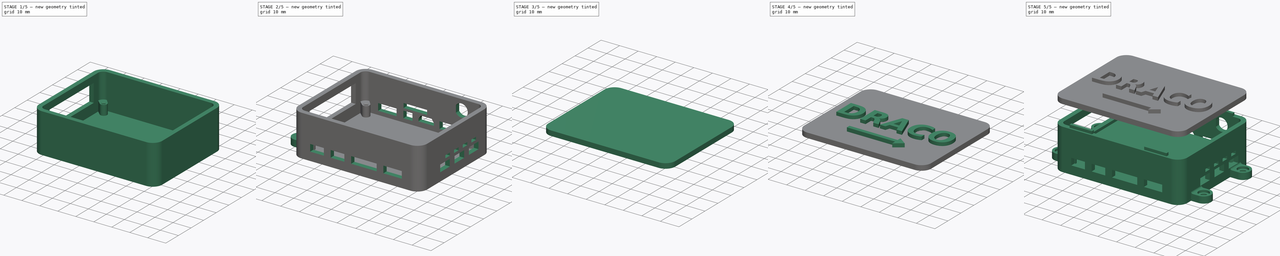
[diagram: build sequence overview — one tinted view per stage of 5, left to right]
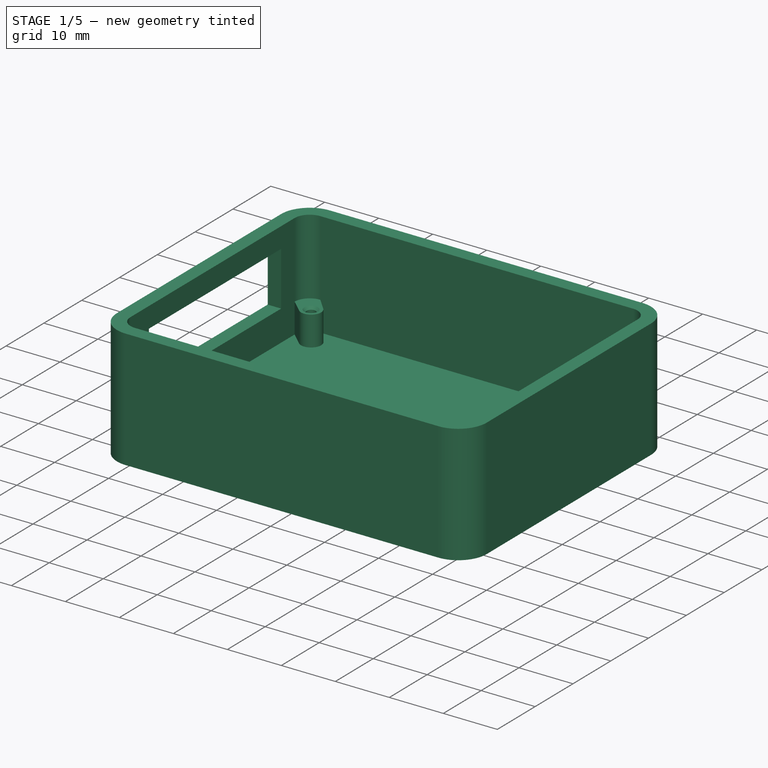
[diagram: stage 1 of 5 — iso view after this stage's code; geometry added in this stage tinted green]
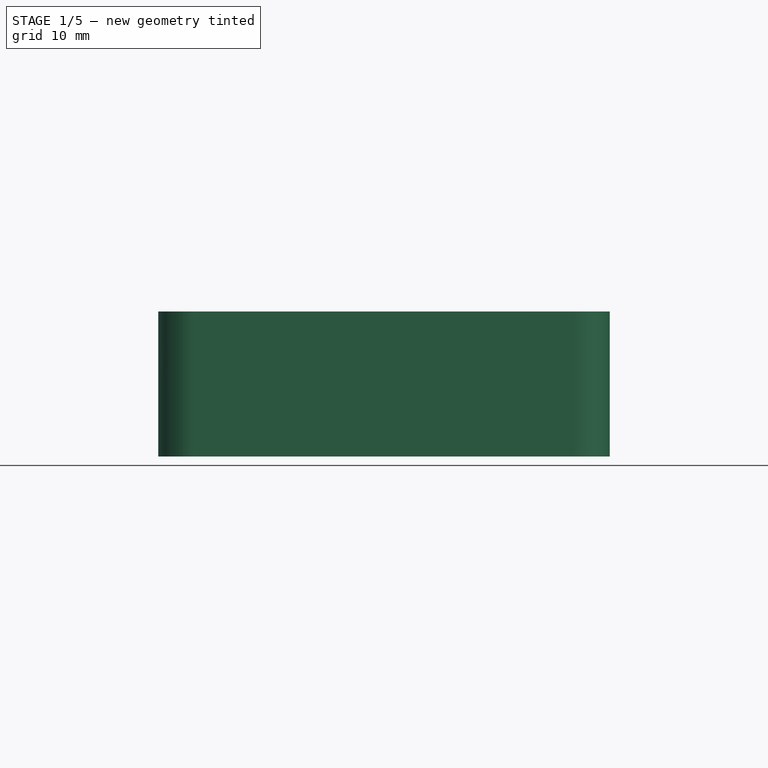
[diagram: stage 1 of 5 — front view after this stage's code; geometry added in this stage tinted green]
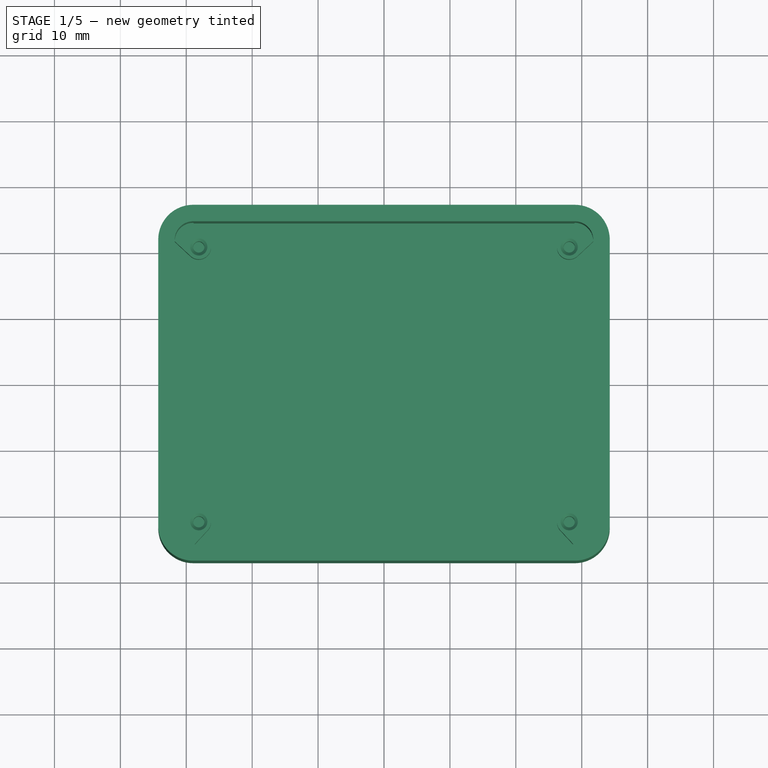
[diagram: stage 1 of 5 — top view after this stage's code; geometry added in this stage tinted green]
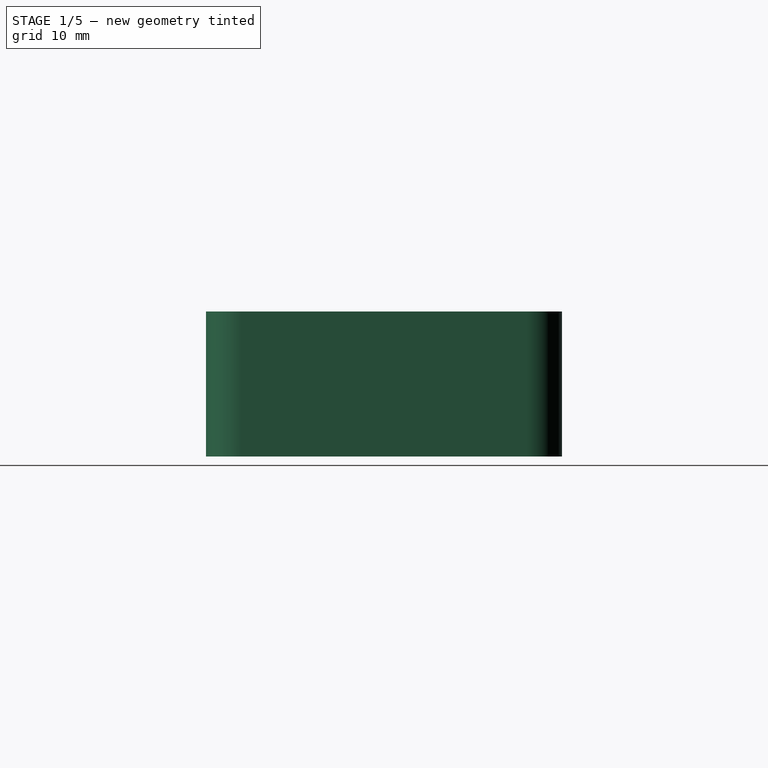
[diagram: stage 1 of 5 — right view after this stage's code; geometry added in this stage tinted green]
FCSTD DOCUMENT  (FreeCAD 0.15R4537 (Git))
Label: draco3
License: CC-BY 3.0
LicenseURL: http://creativecommons.org/licenses/by/3.0/
objects: Sketcher::SketchObject×19, PartDesign::Mirrored×11, PartDesign::Pocket×11, PartDesign::Pad×8, PartDesign::MultiTransform×5, PartDesign::Fillet×2, PartDesign::Chamfer×1, Part::Part2DObjectPython×1, Part::Extrusion×1, Part::MultiFuse×1
note: 79 computed .brp shape members not serialized (recipe doc carries the construction recipe); baked Part::Feature solids carry a one-line shape summary decoded from their .brp

FEATURE [Sketcher::SketchObject] Sketch  label="steny"
  sketch-geometry (16):
    g0: LineSegment StartX=-28.95 StartY=24.5 StartZ=0 EndX=28.95 EndY=24.5 EndZ=0
    g1: LineSegment StartX=31.75 StartY=21.7 StartZ=0 EndX=31.75 EndY=-21.7 EndZ=0
    g2: LineSegment StartX=28.95 StartY=-24.5 StartZ=0 EndX=-28.95 EndY=-24.5 EndZ=0
    g3: LineSegment StartX=-31.75 StartY=-21.7 StartZ=0 EndX=-31.75 EndY=21.7 EndZ=0
    g4: ArcOfCircle CenterX=-28.95 CenterY=21.7 CenterZ=0 NormalX=0 NormalY=0 NormalZ=1 Radius=2.8 StartAngle=1.5708 EndAngle=3.14159
    g5: ArcOfCircle CenterX=28.95 CenterY=-21.7 CenterZ=0 NormalX=0 NormalY=0 NormalZ=1 Radius=2.8 StartAngle=4.71239 EndAngle=6.28319
    g6: ArcOfCircle CenterX=-28.95 CenterY=-21.7 CenterZ=0 NormalX=0 NormalY=0 NormalZ=1 Radius=2.8 StartAngle=3.14159 EndAngle=4.71239
    g7: ArcOfCircle CenterX=28.95 CenterY=21.7 CenterZ=0 NormalX=0 NormalY=0 NormalZ=1 Radius=2.8 StartAngle=0 EndAngle=1.5708
    g8: LineSegment StartX=-28.95 StartY=27 StartZ=0 EndX=28.95 EndY=27 EndZ=0
    g9: LineSegment StartX=34.25 StartY=21.7 StartZ=0 EndX=34.25 EndY=-21.7 EndZ=0
    g10: LineSegment StartX=28.95 StartY=-27 StartZ=0 EndX=-28.95 EndY=-27 EndZ=0
    g11: LineSegment StartX=-34.25 StartY=-21.7 StartZ=0 EndX=-34.25 EndY=21.7 EndZ=0
    g12: ArcOfCircle CenterX=-28.95 CenterY=21.7 CenterZ=0 NormalX=0 NormalY=0 NormalZ=1 Radius=5.3 StartAngle=1.5708 EndAngle=3.14159
    g13: ArcOfCircle CenterX=-28.95 CenterY=-21.7 CenterZ=0 NormalX=0 NormalY=0 NormalZ=1 Radius=5.3 StartAngle=3.14159 EndAngle=4.71239
    g14: ArcOfCircle CenterX=28.95 CenterY=-21.7 CenterZ=0 NormalX=0 NormalY=0 NormalZ=1 Radius=5.3 StartAngle=4.71239 EndAngle=6.28319
    g15: ArcOfCircle CenterX=28.95 CenterY=21.7 CenterZ=0 NormalX=0 NormalY=0 NormalZ=1 Radius=5.3 StartAngle=0 EndAngle=1.5708
  constraints (35):
    c: Horizontal(g0)
    c: Horizontal(g2)
    c: Vertical(g1)
    c: Tangent(g0,g4)
    c: Tangent(g3,g4)
    c: Radius(g4) = 2.8
    c: Tangent(g1,g5)
    c: Tangent(g2,g5)
    c: Tangent(g2,g6)
    c: Tangent(g3,g6)
    c: Tangent(g0,g7)
    c: Tangent(g1,g7)
    c: Symmetric(g3,g1,g-2)
    c: Symmetric(g3,g3,g-1)
    c: DistanceX(g3,g1) = 63.5
    c: DistanceY(g2,g0) = 49
    c: Equal(g4,g7)
    c: Equal(g7,g5)
    c: Horizontal(g8)
    c: Horizontal(g10)
    c: Vertical(g11)
    c: Tangent(g8,g12)
    c: Tangent(g11,g12)
    c: Tangent(g10,g13)
    c: Tangent(g11,g13)
    c: Tangent(g9,g14)
    c: Tangent(g10,g14)
    c: Tangent(g8,g15)
    c: Tangent(g9,g15)
    c: Coincident(g14,g5)
    c: Symmetric(g11,g9,g-2)
    c: Symmetric(g10,g8,g-1)
    c: Equal(g13,g14)
    c: Equal(g15,g12)
    c: DistanceY(g2,g10) = -2.5
FEATURE [PartDesign::Pad] Pad  label="steny padded"
  Length = 22
  Length2 = 100
  Sketch = -> Sketch
  Type = 0
FEATURE [Sketcher::SketchObject] Sketch001  label="dno"
  ExternalGeometry = -> [Pad]
  Placement = pos=(0,0,0) rot=(1,0,0;3.14159rad)
  Support = -> Pad [Face17]
  sketch-geometry (8):
    g0: LineSegment StartX=-28.95 StartY=24.5 StartZ=0 EndX=28.95 EndY=24.5 EndZ=0
    g1: LineSegment StartX=-31.75 StartY=21.7 StartZ=0 EndX=-31.75 EndY=-21.7 EndZ=0
    g2: LineSegment StartX=-28.95 StartY=-24.5 StartZ=0 EndX=28.95 EndY=-24.5 EndZ=0
    g3: LineSegment StartX=31.75 StartY=21.7 StartZ=0 EndX=31.75 EndY=-21.7 EndZ=0
    g4: ArcOfCircle CenterX=-28.95 CenterY=21.7 CenterZ=0 NormalX=0 NormalY=0 NormalZ=1 Radius=2.8 StartAngle=1.5708 EndAngle=3.14159
    g5: ArcOfCircle CenterX=28.95 CenterY=21.7 CenterZ=0 NormalX=0 NormalY=0 NormalZ=1 Radius=2.8 StartAngle=0 EndAngle=1.5708
    g6: ArcOfCircle CenterX=-28.95 CenterY=-21.7 CenterZ=0 NormalX=0 NormalY=0 NormalZ=1 Radius=2.8 StartAngle=3.14159 EndAngle=4.71239
    g7: ArcOfCircle CenterX=28.95 CenterY=-21.7 CenterZ=0 NormalX=0 NormalY=0 NormalZ=1 Radius=2.8 StartAngle=4.71239 EndAngle=6.28319
  constraints (20):
    c: Coincident(g0,g-5)
    c: Coincident(g0,g-7)
    c: Coincident(g1,g-4)
    c: Coincident(g1,g-10)
    c: Coincident(g2,g-10)
    c: Coincident(g2,g-9)
    c: Coincident(g3,g-7)
    c: Coincident(g3,g-8)
    c: Coincident(g4,g-4)
    c: Coincident(g4,g0)
    c: Coincident(g4,g1)
    c: Coincident(g5,g-7)
    c: Coincident(g5,g3)
    c: Coincident(g5,g0)
    c: Coincident(g6,g-10)
    c: Coincident(g6,g2)
    c: Coincident(g6,g1)
    c: Coincident(g7,g-8)
    c: Coincident(g7,g3)
    c: Coincident(g7,g2)
FEATURE [PartDesign::Pad] Pad001  label="dno padded"
  Length = 2.5
  Length2 = 100
  Reversed = true
  Sketch = -> Sketch001
  Type = 0
FEATURE [Sketcher::SketchObject] Sketch002  label="sroub PCB"
  ExternalGeometry = -> [Pad001]
  Placement = pos=(0,0,2.5) rot=(0,0,1;0rad)
  Support = -> Pad001 [Face20]
  sketch-geometry (6):
    g0: Circle CenterX=-28.1 CenterY=-20.85 CenterZ=0 NormalX=0 NormalY=0 NormalZ=1 Radius=0.85
    g1: LineSegment StartX=-31.75 StartY=-21.7 StartZ=0 EndX=-29.3653 EndY=-19.4867 EndZ=0
    g2: ArcOfCircle CenterX=-28.1 CenterY=-20.85 CenterZ=0 NormalX=0 NormalY=0 NormalZ=1 Radius=1.86 StartAngle=5.53505 EndAngle=8.60212
    g3: LineSegment StartX=-28.95 StartY=-24.5 StartZ=0 EndX=-26.7367 EndY=-22.1153 EndZ=0
    g4: LineSegment StartX=-31.75 StartY=-21.7 StartZ=0 EndX=-31.75 EndY=-24.5 EndZ=0
    g5: LineSegment StartX=-28.95 StartY=-24.5 StartZ=0 EndX=-31.75 EndY=-24.5 EndZ=0
  constraints (16):
    c: Coincident(g1,g-4)
    c: Coincident(g4,g1)
    c: Coincident(g3,g-5)
    c: Coincident(g5,g3)
    c: Tangent(g1,g2)
    c: Tangent(g3,g2)
    c: Coincident(g1,g2)
    c: Coincident(g2,g0)
    c: Coincident(g2,g3)
    c: Horizontal(g5)
    c: Vertical(g4)
    c: Coincident(g5,g4)
    c: Distance(g0,g-5) = 3.65
    c: Radius(g0) = 0.85
    c: Radius(g2) = 1.86
    c: Distance(g0,g-3) = 3.65
FEATURE [PartDesign::Pad] Pad002  label="pcb sroub dolni levy"
  Length = 5.5
  Length2 = 100
  Sketch = -> Sketch002
  Type = 0
FEATURE [PartDesign::Mirrored] Mirrored
  MirrorPlane = -> Sketch002 [V_Axis]
FEATURE [PartDesign::Mirrored] Mirrored001
  MirrorPlane = -> Sketch002 [H_Axis]
FEATURE [PartDesign::MultiTransform] MultiTransform  label="pcb sroub multi"
  Originals = -> [Pad002]
  Transformations = -> [Mirrored,Mirrored001]
FEATURE [PartDesign::Chamfer] Chamfer  label="Zkoseni srouby pcb"
  Base = -> MultiTransform [Edge100,Edge83,Edge89,Edge95]
  Size = 0.45
FEATURE [Sketcher::SketchObject] Sketch004  label="panel zadni"
  Placement = pos=(-34.25,0,0) rot=(0.57735,-0.57735,-0.57735;2.0944rad)
  Support = -> Chamfer [Face26]
  sketch-geometry (8):
    g0: LineSegment [constr] StartX=-23.75 StartY=9.7 StartZ=0 EndX=23.75 EndY=9.7 EndZ=0
    g1: LineSegment [constr] StartX=23.75 StartY=9.7 StartZ=0 EndX=23.75 EndY=8 EndZ=0
    g2: LineSegment [constr] StartX=23.75 StartY=8 StartZ=0 EndX=-23.75 EndY=8 EndZ=0
    g3: LineSegment [constr] StartX=-23.75 StartY=8 StartZ=0 EndX=-23.75 EndY=9.7 EndZ=0
    g4: LineSegment StartX=-18.15 StartY=18.2 StartZ=0 EndX=16.85 EndY=18.2 EndZ=0
    g5: LineSegment StartX=16.85 StartY=18.2 StartZ=0 EndX=16.85 EndY=8.2 EndZ=0
    g6: LineSegment StartX=16.85 StartY=8.2 StartZ=0 EndX=-18.15 EndY=8.2 EndZ=0
    g7: LineSegment StartX=-18.15 StartY=8.2 StartZ=0 EndX=-18.15 EndY=18.2 EndZ=0
  constraints (24):
    c: Coincident(g0,g1)
    c: Coincident(g1,g2)
    c: Coincident(g2,g3)
    c: Coincident(g3,g0)
    c: Horizontal(g0)
    c: Horizontal(g2)
    c: Vertical(g1)
    c: Vertical(g3)
    c: DistanceY(g1,g0) = 1.7
    c: Symmetric(g0,g0,g-2)
    c: DistanceY(g-1,g2) = 8
    c: DistanceX(g2,g1) = 47.5
    c: Coincident(g4,g5)
    c: Coincident(g5,g6)
    c: Coincident(g6,g7)
    c: Coincident(g7,g4)
    c: Horizontal(g4)
    c: Horizontal(g6)
    c: Vertical(g5)
    c: Vertical(g7)
    c: DistanceX(g5,g0) = 6.9
    c: DistanceX(g6,g0) = -5.6
    c: DistanceY(g4,g6) = -10
    c: DistanceY(g6,g0) = 1.5
FEATURE [PartDesign::Pocket] Pocket
  Length = 5
  Sketch = -> Sketch004
  Type = 2
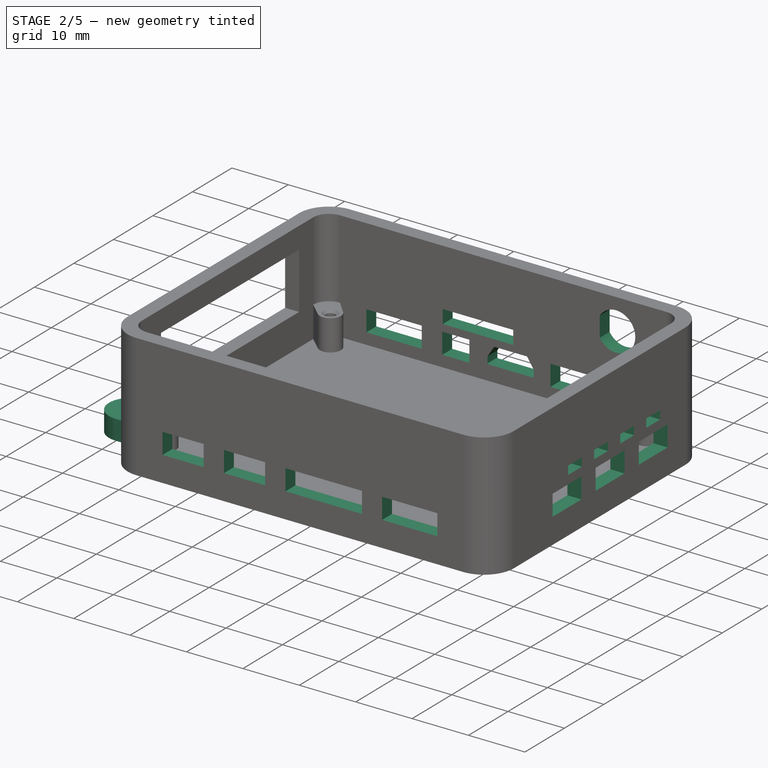
[diagram: stage 2 of 5 — iso view after this stage's code; geometry added in this stage tinted green]
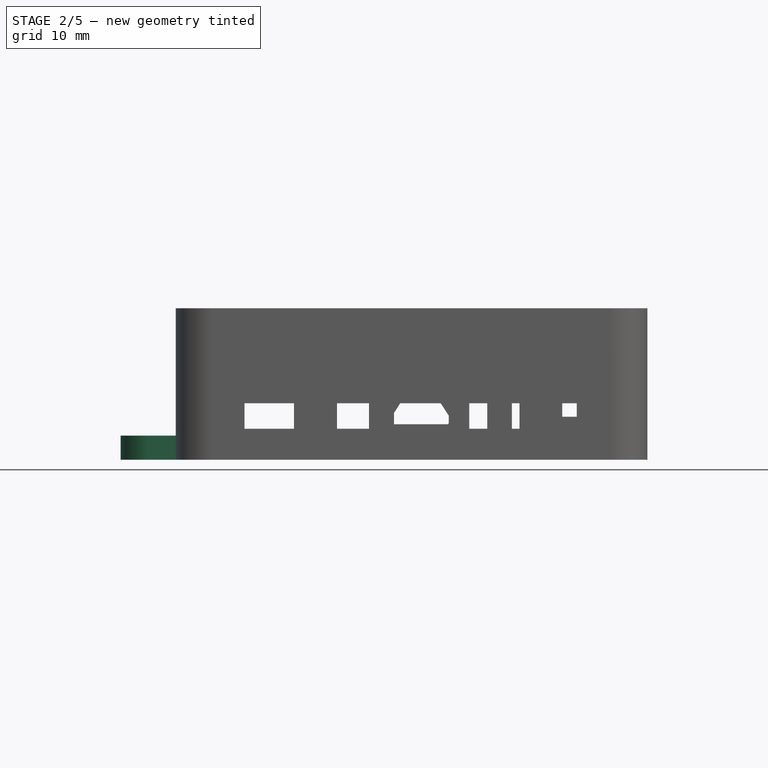
[diagram: stage 2 of 5 — front view after this stage's code; geometry added in this stage tinted green]
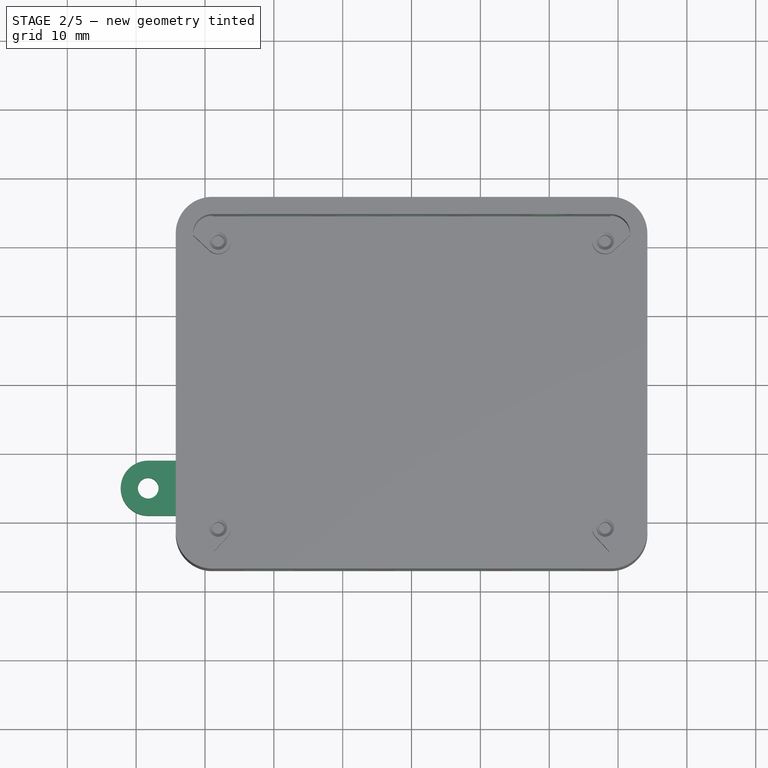
[diagram: stage 2 of 5 — top view after this stage's code; geometry added in this stage tinted green]
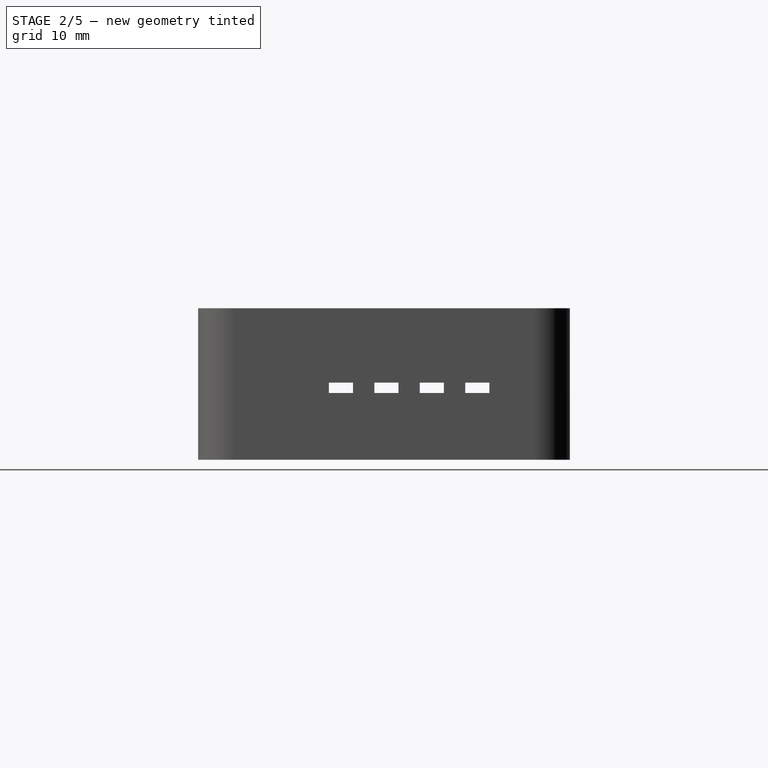
[diagram: stage 2 of 5 — right view after this stage's code; geometry added in this stage tinted green]
FEATURE [Sketcher::SketchObject] Sketch005  label="panel pravy"
  Placement = pos=(0,-27,0) rot=(1,0,0;1.5708rad)
  Support = -> Pocket [Face36]
  sketch-geometry (24):
    g0: LineSegment [constr] StartX=-31 StartY=9.7 StartZ=0 EndX=31 EndY=9.7 EndZ=0
    g1: LineSegment [constr] StartX=31 StartY=9.7 StartZ=0 EndX=31 EndY=8 EndZ=0
    g2: LineSegment [constr] StartX=31 StartY=8 StartZ=0 EndX=-31 EndY=8 EndZ=0
    g3: LineSegment [constr] StartX=-31 StartY=8 StartZ=0 EndX=-31 EndY=9.7 EndZ=0
    g4: LineSegment [constr] StartX=-24.37 StartY=8.2 StartZ=0 EndX=24.38 EndY=8.2 EndZ=0
    g5: LineSegment [constr] StartX=24.38 StartY=8.2 StartZ=0 EndX=24.38 EndY=4.5 EndZ=0
    g6: LineSegment [constr] StartX=24.38 StartY=4.5 StartZ=0 EndX=-24.37 EndY=4.5 EndZ=0
    g7: LineSegment [constr] StartX=-24.37 StartY=4.5 StartZ=0 EndX=-24.37 EndY=8.2 EndZ=0
    g8: LineSegment StartX=-24.37 StartY=8.2 StartZ=0 EndX=-17.07 EndY=8.2 EndZ=0
    g9: LineSegment StartX=-17.07 StartY=8.2 StartZ=0 EndX=-17.07 EndY=4.5 EndZ=0
    g10: LineSegment StartX=-17.07 StartY=4.5 StartZ=0 EndX=-24.37 EndY=4.5 EndZ=0
    g11: LineSegment StartX=-24.37 StartY=4.5 StartZ=0 EndX=-24.37 EndY=8.2 EndZ=0
    g12: LineSegment StartX=-13.47 StartY=8.2 StartZ=0 EndX=-6.17 EndY=8.2 EndZ=0
    g13: LineSegment StartX=-6.17 StartY=8.2 StartZ=0 EndX=-6.17 EndY=4.5 EndZ=0
    g14: LineSegment StartX=-6.17 StartY=4.5 StartZ=0 EndX=-13.47 EndY=4.5 EndZ=0
    g15: LineSegment StartX=-13.47 StartY=4.5 StartZ=0 EndX=-13.47 EndY=8.2 EndZ=0
    g16: LineSegment StartX=-2.555 StartY=8.2 StartZ=0 EndX=10.995 EndY=8.2 EndZ=0
    g17: LineSegment StartX=10.995 StartY=8.2 StartZ=0 EndX=10.995 EndY=4.5 EndZ=0
    g18: LineSegment StartX=10.995 StartY=4.5 StartZ=0 EndX=-2.555 EndY=4.5 EndZ=0
    g19: LineSegment StartX=-2.555 StartY=4.5 StartZ=0 EndX=-2.555 EndY=8.2 EndZ=0
    g20: LineSegment StartX=14.58 StartY=8.2 StartZ=0 EndX=24.38 EndY=8.2 EndZ=0
    g21: LineSegment StartX=24.38 StartY=8.2 StartZ=0 EndX=24.38 EndY=4.5 EndZ=0
    g22: LineSegment StartX=24.38 StartY=4.5 StartZ=0 EndX=14.58 EndY=4.5 EndZ=0
    g23: LineSegment StartX=14.58 StartY=4.5 StartZ=0 EndX=14.58 EndY=8.2 EndZ=0
  constraints (70):
    c: Coincident(g0,g1)
    c: Coincident(g1,g2)
    c: Coincident(g2,g3)
    c: Coincident(g3,g0)
    c: Horizontal(g0)
    c: Horizontal(g2)
    c: Vertical(g1)
    c: Vertical(g3)
    c: Symmetric(g0,g0,g-2)
    c: DistanceX(g2,g1) = 62
    c: DistanceY(g0,g1) = -1.7
    c: DistanceY(g-1,g1) = 8
    c: Coincident(g4,g5)
    c: Coincident(g5,g6)
    c: Coincident(g6,g7)
    c: Coincident(g7,g4)
    c: Horizontal(g4)
    c: Horizontal(g6)
    c: Vertical(g5)
    c: Vertical(g7)
    c: DistanceY(g4,g2) = -0.2
    c: DistanceY(g4,g6) = -3.7
    c: DistanceX(g6,g2) = -6.63
    c: DistanceX(g2,g5) = 55.38
    c: Coincident(g8,g9)
    c: Coincident(g9,g10)
    c: Coincident(g10,g11)
    c: Coincident(g11,g8)
    c: Horizontal(g8)
    c: Horizontal(g10)
    c: Vertical(g9)
    c: Vertical(g11)
    c: Coincident(g8,g4)
    c: Coincident(g10,g6)
    c: DistanceX(g6,g9) = 7.3
    c: Coincident(g12,g13)
    c: Coincident(g13,g14)
    c: Coincident(g14,g15)
    c: Coincident(g15,g12)
    c: Horizontal(g12)
    c: Horizontal(g14)
    c: Vertical(g13)
    c: Vertical(g15)
    c: PointOnObject(g12,g4)
    c: PointOnObject(g13,g6)
    c: DistanceX(g14,g2) = -17.53
    c: DistanceX(g14,g13) = 7.3
    c: Coincident(g16,g17)
    c: Coincident(g17,g18)
    c: Coincident(g18,g19)
    c: Coincident(g19,g16)
    c: Horizontal(g16)
    c: Horizontal(g18)
    c: Vertical(g17)
    c: Vertical(g19)
    c: PointOnObject(g16,g4)
    c: PointOnObject(g17,g6)
    c: DistanceX(g18,g2) = -28.445
    c: DistanceX(g18,g17) = 13.55
    c: Coincident(g20,g21)
    c: Coincident(g21,g22)
    c: Coincident(g22,g23)
    c: Coincident(g23,g20)
    c: Horizontal(g20)
    c: Horizontal(g22)
    c: Vertical(g21)
    c: Vertical(g23)
    c: PointOnObject(g20,g4)
    c: Coincident(g21,g5)
    c: DistanceX(g22,g2) = -45.58
FEATURE [PartDesign::Pocket] Pocket001
  Length = 3
  Sketch = -> Sketch005
  Type = 0
FEATURE [Sketcher::SketchObject] Sketch006  label="panel predni"
  Placement = pos=(34.25,0,0) rot=(0.57735,0.57735,0.57735;2.0944rad)
  Support = -> Pocket001 [Face34]
  sketch-geometry (39):
    g0: LineSegment [constr] StartX=-23.75 StartY=9.7 StartZ=0 EndX=23.75 EndY=9.7 EndZ=0
    g1: LineSegment [constr] StartX=23.75 StartY=9.7 StartZ=0 EndX=23.75 EndY=8 EndZ=0
    g2: LineSegment [constr] StartX=23.75 StartY=8 StartZ=0 EndX=-23.75 EndY=8 EndZ=0
    g3: LineSegment [constr] StartX=-23.75 StartY=8 StartZ=0 EndX=-23.75 EndY=9.7 EndZ=0
    g4: LineSegment [constr] StartX=-11.93 StartY=8.2 StartZ=0 EndX=17.18 EndY=8.2 EndZ=0
    g5: LineSegment [constr] StartX=17.18 StartY=8.2 StartZ=0 EndX=17.18 EndY=4.5 EndZ=0
    g6: LineSegment [constr] StartX=17.18 StartY=4.5 StartZ=0 EndX=-11.93 EndY=4.5 EndZ=0
    g7: LineSegment [constr] StartX=-11.93 StartY=4.5 StartZ=0 EndX=-11.93 EndY=8.2 EndZ=0
    g8: LineSegment StartX=-11.93 StartY=8.2 StartZ=0 EndX=-4.63 EndY=8.2 EndZ=0
    g9: LineSegment StartX=-4.63 StartY=8.2 StartZ=0 EndX=-4.63 EndY=4.5 EndZ=0
    g10: LineSegment StartX=-4.63 StartY=4.5 StartZ=0 EndX=-11.93 EndY=4.5 EndZ=0
    g11: LineSegment StartX=-11.93 StartY=4.5 StartZ=0 EndX=-11.93 EndY=8.2 EndZ=0
    g12: LineSegment StartX=-1.025 StartY=8.2 StartZ=0 EndX=6.275 EndY=8.2 EndZ=0
    g13: LineSegment StartX=6.275 StartY=8.2 StartZ=0 EndX=6.275 EndY=4.5 EndZ=0
    g14: LineSegment StartX=6.275 StartY=4.5 StartZ=0 EndX=-1.025 EndY=4.5 EndZ=0
    g15: LineSegment StartX=-1.025 StartY=4.5 StartZ=0 EndX=-1.025 EndY=8.2 EndZ=0
    g16: LineSegment StartX=9.875 StartY=8.2 StartZ=0 EndX=17.18 EndY=8.2 EndZ=0
    g17: LineSegment StartX=17.18 StartY=8.2 StartZ=0 EndX=17.18 EndY=4.5 EndZ=0
    g18: LineSegment StartX=17.18 StartY=4.5 StartZ=0 EndX=9.875 EndY=4.5 EndZ=0
    g19: LineSegment StartX=9.875 StartY=4.5 StartZ=0 EndX=9.875 EndY=8.2 EndZ=0
    g20: LineSegment [constr] StartX=-8 StartY=9.7 StartZ=0 EndX=-8 EndY=11.2 EndZ=0
    g21: LineSegment [constr] StartX=-8 StartY=11.2 StartZ=0 EndX=15.3 EndY=11.2 EndZ=0
    g22: LineSegment [constr] StartX=15.3 StartY=11.2 StartZ=0 EndX=15.3 EndY=9.7 EndZ=0
    g23: LineSegment StartX=-8 StartY=11.2 StartZ=0 EndX=-4.5 EndY=11.2 EndZ=0
    g24: LineSegment StartX=-4.5 StartY=11.2 StartZ=0 EndX=-4.5 EndY=9.7 EndZ=0
    g25: LineSegment StartX=-4.5 StartY=9.7 StartZ=0 EndX=-8 EndY=9.7 EndZ=0
    g26: LineSegment StartX=-8 StartY=9.7 StartZ=0 EndX=-8 EndY=11.2 EndZ=0
    g27: LineSegment StartX=-1.4 StartY=11.2 StartZ=0 EndX=2.1 EndY=11.2 EndZ=0
    g28: LineSegment StartX=2.1 StartY=11.2 StartZ=0 EndX=2.1 EndY=9.7 EndZ=0
    g29: LineSegment StartX=2.1 StartY=9.7 StartZ=0 EndX=-1.4 EndY=9.7 EndZ=0
    g30: LineSegment StartX=-1.4 StartY=9.7 StartZ=0 EndX=-1.4 EndY=11.2 EndZ=0
    g31: LineSegment StartX=5.2 StartY=11.2 StartZ=0 EndX=8.7 EndY=11.2 EndZ=0
    g32: LineSegment StartX=8.7 StartY=11.2 StartZ=0 EndX=8.7 EndY=9.7 EndZ=0
    g33: LineSegment StartX=8.7 StartY=9.7 StartZ=0 EndX=5.2 EndY=9.7 EndZ=0
    g34: LineSegment StartX=5.2 StartY=9.7 StartZ=0 EndX=5.2 EndY=11.2 EndZ=0
    g35: LineSegment StartX=11.8 StartY=11.2 StartZ=0 EndX=15.3 EndY=11.2 EndZ=0
    g36: LineSegment StartX=15.3 StartY=11.2 StartZ=0 EndX=15.3 EndY=9.7 EndZ=0
    g37: LineSegment StartX=15.3 StartY=9.7 StartZ=0 EndX=11.8 EndY=9.7 EndZ=0
    g38: LineSegment StartX=11.8 StartY=9.7 StartZ=0 EndX=11.8 EndY=11.2 EndZ=0
  constraints (114):
    c: Coincident(g0,g1)
    c: Coincident(g1,g2)
    c: Coincident(g2,g3)
    c: Coincident(g3,g0)
    c: Horizontal(g0)
    c: Horizontal(g2)
    c: Vertical(g1)
    c: Vertical(g3)
    c: Symmetric(g0,g0,g-2)
    c: DistanceY(g0,g2) = -1.7
    c: DistanceY(g-1,g1) = 8
    c: DistanceX(g0,g0) = 47.5
    c: Coincident(g4,g5)
    c: Coincident(g5,g6)
    c: Coincident(g6,g7)
    c: Coincident(g7,g4)
    c: Horizontal(g4)
    c: Horizontal(g6)
    c: Vertical(g5)
    c: Vertical(g7)
    c: DistanceY(g4,g6) = -3.7
    c: DistanceY(g4,g1) = -0.2
    c: DistanceX(g6,g2) = -11.82
    c: DistanceX(g5,g2) = -40.93
    c: Coincident(g8,g9)
    c: Coincident(g9,g10)
    c: Coincident(g10,g11)
    c: Coincident(g11,g8)
    c: Horizontal(g8)
    c: Horizontal(g10)
    c: Vertical(g9)
    c: Vertical(g11)
    c: Coincident(g8,g4)
    c: PointOnObject(g9,g6)
    c: DistanceX(g6,g9) = 7.3
    c: Coincident(g12,g13)
    c: Coincident(g13,g14)
    c: Coincident(g14,g15)
    c: Coincident(g15,g12)
    c: Horizontal(g12)
    c: Horizontal(g14)
    c: Vertical(g13)
    c: Vertical(g15)
    c: PointOnObject(g12,g4)
    c: PointOnObject(g13,g6)
    c: DistanceX(g14,g2) = -22.725
    c: DistanceX(g14,g13) = 7.3
    c: Coincident(g16,g17)
    c: Coincident(g17,g18)
    c: Coincident(g18,g19)
    c: Coincident(g19,g16)
    c: Horizontal(g16)
    c: Horizontal(g18)
    c: Vertical(g17)
    c: Vertical(g19)
    c: PointOnObject(g16,g4)
    c: Coincident(g17,g5)
    c: DistanceX(g18,g2) = -33.625
    c: PointOnObject(g20,g0)
    c: Vertical(g20)
    c: Coincident(g21,g20)
    c: Horizontal(g21)
    c: Coincident(g22,g21)
    c: PointOnObject(g22,g0)
    c: Vertical(g22)
    c: DistanceY(g20,g0) = -1.5
    c: DistanceX(g21,g0) = 8.45
    c: DistanceX(g20,g0) = 31.75
    c: Coincident(g23,g24)
    c: Coincident(g24,g25)
    c: Coincident(g25,g26)
    c: Coincident(g26,g23)
    c: Horizontal(g23)
    c: Horizontal(g25)
    c: Vertical(g24)
    c: Vertical(g26)
    c: Coincident(g23,g20)
    c: PointOnObject(g24,g0)
    c: Coincident(g27,g28)
    c: Coincident(g28,g29)
    c: Coincident(g29,g30)
    c: Coincident(g30,g27)
    c: Horizontal(g27)
    c: Horizontal(g29)
    c: Vertical(g28)
    c: Vertical(g30)
    c: PointOnObject(g27,g21)
    c: PointOnObject(g28,g0)
    c: DistanceX(g27,g27) = 3.5
    c: Coincident(g31,g32)
    c: Coincident(g32,g33)
    c: Coincident(g33,g34)
    c: Coincident(g34,g31)
    c: Horizontal(g31)
    c: Horizontal(g33)
    c: Vertical(g32)
    c: Vertical(g34)
    c: PointOnObject(g31,g21)
    c: PointOnObject(g32,g0)
    c: DistanceX(g31,g31) = 3.5
    c: Coincident(g35,g36)
    c: Coincident(g36,g37)
    c: Coincident(g37,g38)
    c: Coincident(g38,g35)
    c: Horizontal(g35)
    c: Horizontal(g37)
    c: Vertical(g36)
    c: Vertical(g38)
    c: PointOnObject(g35,g21)
    c: Coincident(g36,g22)
    c: DistanceX(g35,g21) = 3.5
    c: DistanceX(g31,g0) = 15.05
    c: DistanceX(g27,g0) = 21.65
    c: DistanceX(g23,g0) = 28.25
FEATURE [PartDesign::Pocket] Pocket002
  Length = 5
  Sketch = -> Sketch006
  Type = 0
FEATURE [Sketcher::SketchObject] Sketch007  label="panel levy picoblades"
  Placement = pos=(0,27,0) rot=(0,0.707107,0.707107;3.14159rad)
  Support = -> Pocket002 [Face32]
  sketch-geometry (20):
    g0: LineSegment [constr] StartX=-31 StartY=9.7 StartZ=0 EndX=31 EndY=9.7 EndZ=0
    g1: LineSegment [constr] StartX=31 StartY=9.7 StartZ=0 EndX=31 EndY=8 EndZ=0
    g2: LineSegment [constr] StartX=31 StartY=8 StartZ=0 EndX=-31 EndY=8 EndZ=0
    g3: LineSegment [constr] StartX=-31 StartY=8 StartZ=0 EndX=-31 EndY=9.7 EndZ=0
    g4: LineSegment [constr] StartX=-15.68 StartY=8.2 StartZ=0 EndX=24.27 EndY=8.2 EndZ=0
    g5: LineSegment [constr] StartX=24.27 StartY=8.2 StartZ=0 EndX=24.27 EndY=4.5 EndZ=0
    g6: LineSegment [constr] StartX=24.27 StartY=4.5 StartZ=0 EndX=-15.68 EndY=4.5 EndZ=0
    g7: LineSegment [constr] StartX=-15.68 StartY=4.5 StartZ=0 EndX=-15.68 EndY=8.2 EndZ=0
    g8: LineSegment StartX=14.47 StartY=8.2 StartZ=0 EndX=24.27 EndY=8.2 EndZ=0
    g9: LineSegment StartX=24.27 StartY=8.2 StartZ=0 EndX=24.27 EndY=4.5 EndZ=0
    g10: LineSegment StartX=24.27 StartY=4.5 StartZ=0 EndX=14.47 EndY=4.5 EndZ=0
    g11: LineSegment StartX=14.47 StartY=4.5 StartZ=0 EndX=14.47 EndY=8.2 EndZ=0
    g12: LineSegment StartX=6.02 StartY=8.2 StartZ=0 EndX=10.82 EndY=8.2 EndZ=0
    g13: LineSegment StartX=10.82 StartY=8.2 StartZ=0 EndX=10.82 EndY=4.5 EndZ=0
    g14: LineSegment StartX=10.82 StartY=4.5 StartZ=0 EndX=6.02 EndY=4.5 EndZ=0
    g15: LineSegment StartX=6.02 StartY=4.5 StartZ=0 EndX=6.02 EndY=8.2 EndZ=0
    g16: LineSegment StartX=-15.68 StartY=8.2 StartZ=0 EndX=-8.38 EndY=8.2 EndZ=0
    g17: LineSegment StartX=-8.38 StartY=8.2 StartZ=0 EndX=-8.38 EndY=4.5 EndZ=0
    g18: LineSegment StartX=-8.38 StartY=4.5 StartZ=0 EndX=-15.68 EndY=4.5 EndZ=0
    g19: LineSegment StartX=-15.68 StartY=4.5 StartZ=0 EndX=-15.68 EndY=8.2 EndZ=0
  constraints (59):
    c: Coincident(g0,g1)
    c: Coincident(g1,g2)
    c: Coincident(g2,g3)
    c: Coincident(g3,g0)
    c: Horizontal(g0)
    c: Horizontal(g2)
    c: Vertical(g1)
    c: Vertical(g3)
    c: Symmetric(g0,g0,g-2)
    c: DistanceY(g0,g1) = -1.7
    c: DistanceX(g2,g1) = 62
    c: DistanceY(g-1,g1) = 8
    c: Coincident(g4,g5)
    c: Coincident(g5,g6)
    c: Coincident(g6,g7)
    c: Coincident(g7,g4)
    c: Horizontal(g4)
    c: Horizontal(g6)
    c: Vertical(g5)
    c: Vertical(g7)
    c: DistanceY(g4,g1) = -0.2
    c: DistanceX(g6,g1) = 46.68
    c: DistanceX(g5,g1) = 6.73
    c: DistanceY(g4,g6) = -3.7
    c: Coincident(g8,g9)
    c: Coincident(g9,g10)
    c: Coincident(g10,g11)
    c: Coincident(g11,g8)
    c: Horizontal(g8)
    c: Horizontal(g10)
    c: Vertical(g9)
    c: Vertical(g11)
    c: PointOnObject(g8,g4)
    c: Coincident(g9,g5)
    c: DistanceX(g10,g5) = 9.8
    c: Coincident(g12,g13)
    c: Coincident(g13,g14)
    c: Coincident(g14,g15)
    c: Coincident(g15,g12)
    c: Horizontal(g12)
    c: Horizontal(g14)
    c: Vertical(g13)
    c: Vertical(g15)
    c: PointOnObject(g13,g6)
    c: DistanceX(g13,g14) = -4.8
    c: PointOnObject(g12,g4)
    c: DistanceX(g13,g1) = 20.18
    c: Coincident(g16,g17)
    c: Coincident(g17,g18)
    c: Coincident(g18,g19)
    c: Coincident(g19,g16)
    c: Horizontal(g16)
    c: Horizontal(g18)
    c: Vertical(g17)
    c: Vertical(g19)
    c: PointOnObject(g16,g4)
    c: PointOnObject(g17,g6)
    c: DistanceX(g17,g1) = 39.38
    c: Coincident(g16,g4)
FEATURE [PartDesign::Pocket] Pocket003
  Length = 5
  Sketch = -> Sketch007
  Type = 0
FEATURE [Sketcher::SketchObject] Sketch008  label="panel levy usb microsd switch"
  Placement = pos=(0,27,0) rot=(0,0.707107,0.707107;3.14159rad)
  Support = -> Pocket003 [Face44]
  sketch-geometry (30):
    g0: LineSegment [constr] StartX=-31 StartY=9.7 StartZ=0 EndX=31 EndY=9.7 EndZ=0
    g1: LineSegment [constr] StartX=31 StartY=9.7 StartZ=0 EndX=31 EndY=8 EndZ=0
    g2: LineSegment [constr] StartX=31 StartY=8 StartZ=0 EndX=-31 EndY=8 EndZ=0
    g3: LineSegment [constr] StartX=-31 StartY=8 StartZ=0 EndX=-31 EndY=9.7 EndZ=0
    g4: LineSegment StartX=-4.1 StartY=8.25 StartZ=0 EndX=1.5 EndY=8.25 EndZ=0
    g5: LineSegment StartX=1.66791 StartY=8.15865 StartZ=0 EndX=2.76791 EndY=6.45865 EndZ=0
    g6: LineSegment StartX=2.8 StartY=6.35 StartZ=0 EndX=2.8 EndY=5.35 EndZ=0
    g7: LineSegment StartX=2.6 StartY=5.15 StartZ=0 EndX=-5.2 EndY=5.15 EndZ=0
    g8: LineSegment StartX=-5.4 StartY=5.35 StartZ=0 EndX=-5.4 EndY=6.35 EndZ=0
    g9: LineSegment StartX=-5.36791 StartY=6.45865 StartZ=0 EndX=-4.26791 EndY=8.15865 EndZ=0
    g10: LineSegment [constr] StartX=-1.3 StartY=8.25 StartZ=0 EndX=-1.3 EndY=5.15 EndZ=0
    g11: ArcOfCircle CenterX=-4.1 CenterY=8.05 CenterZ=0 NormalX=0 NormalY=0 NormalZ=1 Radius=0.2 StartAngle=1.5708 EndAngle=2.56729
    g12: ArcOfCircle CenterX=-5.2 CenterY=6.35 CenterZ=0 NormalX=0 NormalY=0 NormalZ=1 Radius=0.2 StartAngle=2.56729 EndAngle=3.14159
    g13: ArcOfCircle CenterX=-5.2 CenterY=5.35 CenterZ=0 NormalX=0 NormalY=0 NormalZ=1 Radius=0.2 StartAngle=3.14159 EndAngle=4.71239
    g14: ArcOfCircle CenterX=2.6 CenterY=5.35 CenterZ=0 NormalX=0 NormalY=0 NormalZ=1 Radius=0.2 StartAngle=4.71239 EndAngle=6.28319
    g15: ArcOfCircle CenterX=2.6 CenterY=6.35 CenterZ=0 NormalX=0 NormalY=0 NormalZ=1 Radius=0.2 StartAngle=0 EndAngle=0.574305
    g16: ArcOfCircle CenterX=1.5 CenterY=8.05 CenterZ=0 NormalX=0 NormalY=0 NormalZ=1 Radius=0.2 StartAngle=0.574305 EndAngle=1.5708
    g17: LineSegment StartX=-1.77 StartY=11.85 StartZ=0 EndX=10.73 EndY=11.85 EndZ=0
    g18: LineSegment StartX=10.73 StartY=11.85 StartZ=0 EndX=10.73 EndY=9.45 EndZ=0
    g19: LineSegment StartX=10.73 StartY=9.45 StartZ=0 EndX=-1.77 EndY=9.45 EndZ=0
    g20: LineSegment StartX=-1.77 StartY=9.45 StartZ=0 EndX=-1.77 EndY=11.85 EndZ=0
    g21: LineSegment StartX=-23.99 StartY=8.25 StartZ=0 EndX=-21.89 EndY=8.25 EndZ=0
    g22: LineSegment StartX=-21.89 StartY=8.25 StartZ=0 EndX=-21.89 EndY=6.25 EndZ=0
    g23: LineSegment StartX=-21.89 StartY=6.25 StartZ=0 EndX=-23.99 EndY=6.25 EndZ=0
    g24: LineSegment StartX=-23.99 StartY=6.25 StartZ=0 EndX=-23.99 EndY=8.25 EndZ=0
    g25: ArcOfCircle CenterX=-20 CenterY=16.4748 CenterZ=0 NormalX=0 NormalY=0 NormalZ=1 Radius=3.4 StartAngle=0.549202 EndAngle=5.73398
    g26: LineSegment StartX=-17.1 StartY=18.2496 StartZ=0 EndX=-17.1 EndY=14.7 EndZ=0
    g27: LineSegment [constr] StartX=-23.4 StartY=18.2496 StartZ=0 EndX=-23.4 EndY=14.7 EndZ=0
    g28: LineSegment [constr] StartX=-23.4 StartY=14.7 StartZ=0 EndX=-17.1 EndY=14.7 EndZ=0
    g29: LineSegment [constr] StartX=-23.4 StartY=18.2496 StartZ=0 EndX=-17.1 EndY=18.2496 EndZ=0
  constraints (81):
    c: Coincident(g0,g1)
    c: Coincident(g1,g2)
    c: Coincident(g2,g3)
    c: Coincident(g3,g0)
    c: Horizontal(g0)
    c: Horizontal(g2)
    c: Vertical(g1)
    c: Vertical(g3)
    c: Symmetric(g0,g0,g-2)
    c: DistanceX(g0,g0) = 62
    c: DistanceY(g0,g1) = -1.7
    c: DistanceY(g1) = 8
    c: Horizontal(g4)
    c: Vertical(g6)
    c: Horizontal(g7)
    c: Vertical(g8)
    c: PointOnObject(g10,g4)
    c: PointOnObject(g10,g7)
    c: Vertical(g10)
    c: Tangent(g4,g11) = 1.5708
    c: Tangent(g9,g11) = 1.5708
    c: Tangent(g8,g12) = 1.5708
    c: Tangent(g9,g12) = 1.5708
    c: Tangent(g7,g13) = 1.5708
    c: Tangent(g8,g13) = 1.5708
    c: Tangent(g6,g14) = 1.5708
    c: Tangent(g7,g14) = 1.5708
    c: Tangent(g5,g15) = 1.5708
    c: Tangent(g6,g15) = 1.5708
    c: Tangent(g4,g16) = 1.5708
    c: Tangent(g5,g16) = 1.5708
    c: Symmetric(g9,g5,g10)
    c: Radius(g11) = 0.2
    c: Equal(g11, g12-g16) x5
    c: Equal(g9,g5)
    c: Equal(g8,g6)
    c: DistanceX(g8,g6) = 8.2
    c: DistanceX(g4,g4) = 5.6
    c: DistanceY(g7,g4) = 3.1
    c: DistanceY(g8,g7) = -1.2
    c: DistanceX(g10,g1) = 32.3
    c: Distance(g4,g2) = 0.25
    c: Coincident(g17,g18)
    c: Coincident(g18,g19)
    c: Coincident(g19,g20)
    c: Coincident(g20,g17)
    c: Horizontal(g17)
    c: Horizontal(g19)
    c: Vertical(g18)
    c: Vertical(g20)
    c: DistanceX(g17,g17) = 12.5
    c: DistanceY(g17,g19) = -2.4
    c: DistanceX(g17,g0) = 20.27
    c: DistanceY(g18,g0) = 0.25
    c: Coincident(g21,g22)
    c: Coincident(g22,g23)
    c: Coincident(g23,g24)
    c: Coincident(g24,g21)
    c: Horizontal(g21)
    c: Horizontal(g23)
    c: Vertical(g22)
    c: Vertical(g24)
    c: DistanceX(g21,g21) = 2.1
    c: DistanceY(g22,g21) = 2
    c: DistanceY(g21,g2) = -0.25
    c: DistanceX(g22,g1) = 52.89
    c: Coincident(g26,g25)
    c: Coincident(g26,g25)
    c: Vertical(g26)
    c: Vertical(g27)
    c: Tangent(g27,g25)
    c: DistanceX(g25,g27) = -6.3
    c: Radius(g25) = 3.4
    c: Coincident(g28,g27)
    c: Coincident(g28,g25)
    c: Horizontal(g28)
    c: Coincident(g29,g27)
    c: Coincident(g29,g25)
    c: Horizontal(g29)
    c: DistanceY(g27,g0) = -5
    c: DistanceX(g27,g0) = -7.6
FEATURE [PartDesign::Pocket] Pocket004
  Length = 5
  Sketch = -> Sketch008
  Type = 0
FEATURE [Sketcher::SketchObject] Sketch009  label="otvor sroubu vicka"
  ExternalGeometry = -> [Pocket004]
  Placement = pos=(0,27,0) rot=(0,0.707107,0.707107;3.14159rad)
  Support = -> Pocket004 [Face66]
  sketch-geometry (1):
    g0: Circle CenterX=0 CenterY=17 CenterZ=0 NormalX=0 NormalY=0 NormalZ=1 Radius=0.001
  constraints (3):
    c: Radius(g0) = 0.001
    c: PointOnObject(g0,g-2)
    c: Distance(g0,g-3) = 5
FEATURE [PartDesign::Pocket] Pocket005
  Length = 5
  Sketch = -> Sketch009
  Type = 1
FEATURE [Sketcher::SketchObject] Sketch010  label="prichyceni krabicky"
  ExternalGeometry = -> [Pocket005]
  Placement = pos=(0,0,0) rot=(1,0,0;3.14159rad)
  Support = -> Pocket005 [Face122]
  sketch-geometry (7):
    g0: LineSegment StartX=-34.25 StartY=11 StartZ=0 EndX=-38.25 EndY=11 EndZ=0
    g1: LineSegment StartX=-34.25 StartY=19 StartZ=0 EndX=-38.25 EndY=19 EndZ=0
    g2: Circle CenterX=-38.25 CenterY=15 CenterZ=0 NormalX=0 NormalY=0 NormalZ=1 Radius=1.5
    g3: LineSegment StartX=-34.25 StartY=11 StartZ=0 EndX=-34.25 EndY=19 EndZ=0
    g4: LineSegment [constr] StartX=-38.25 StartY=15 StartZ=0 EndX=-42.25 EndY=15 EndZ=0
    g5: LineSegment [constr] StartX=-38.25 StartY=19 StartZ=0 EndX=-38.25 EndY=15 EndZ=0
    g6: ArcOfCircle CenterX=-38.25 CenterY=15 CenterZ=0 NormalX=0 NormalY=0 NormalZ=1 Radius=4 StartAngle=1.5708 EndAngle=4.71239
  constraints (20):
    c: Horizontal(g0)
    c: Horizontal(g1)
    c: Coincident(g3,g0)
    c: Coincident(g3,g1)
    c: Coincident(g4,g2)
    c: Horizontal(g4)
    c: Symmetric(g1,g0,g4)
    c: Radius(g2) = 1.5
    c: Coincident(g5,g1)
    c: Coincident(g5,g2)
    c: Vertical(g5)
    c: Equal(g5,g4)
    c: DistanceX(g2,g4) = -4
    c: DistanceX(g2,g1) = 4
    c: DistanceY(g-1,g2) = 15
    c: PointOnObject(g0,g-3)
    c: PointOnObject(g1,g-3)
    c: Coincident(g6,g0)
    c: Coincident(g6,g1)
    c: PointOnObject(g4,g6)
FEATURE [PartDesign::Pad] Pad004
  Length = 3.5
  Length2 = 100
  Reversed = true
  Sketch = -> Sketch010
  Type = 0
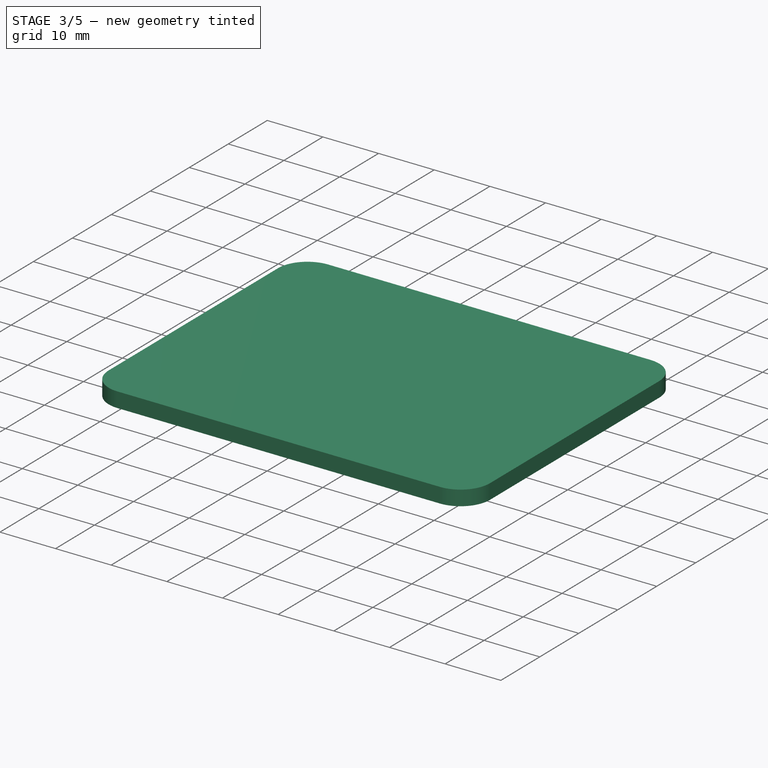
[diagram: stage 3 of 5 — iso view after this stage's code; geometry added in this stage tinted green]
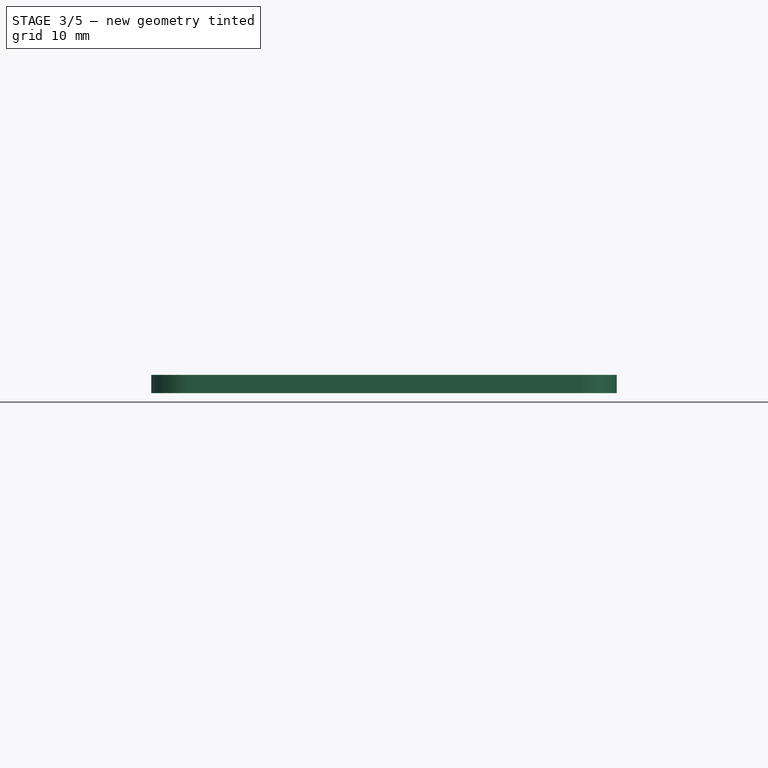
[diagram: stage 3 of 5 — front view after this stage's code; geometry added in this stage tinted green]
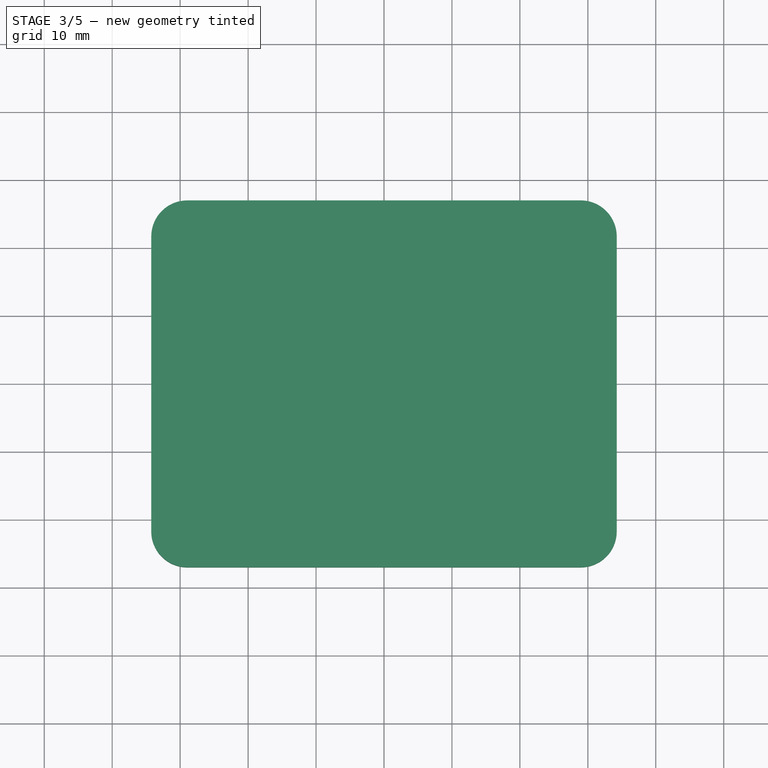
[diagram: stage 3 of 5 — top view after this stage's code; geometry added in this stage tinted green]
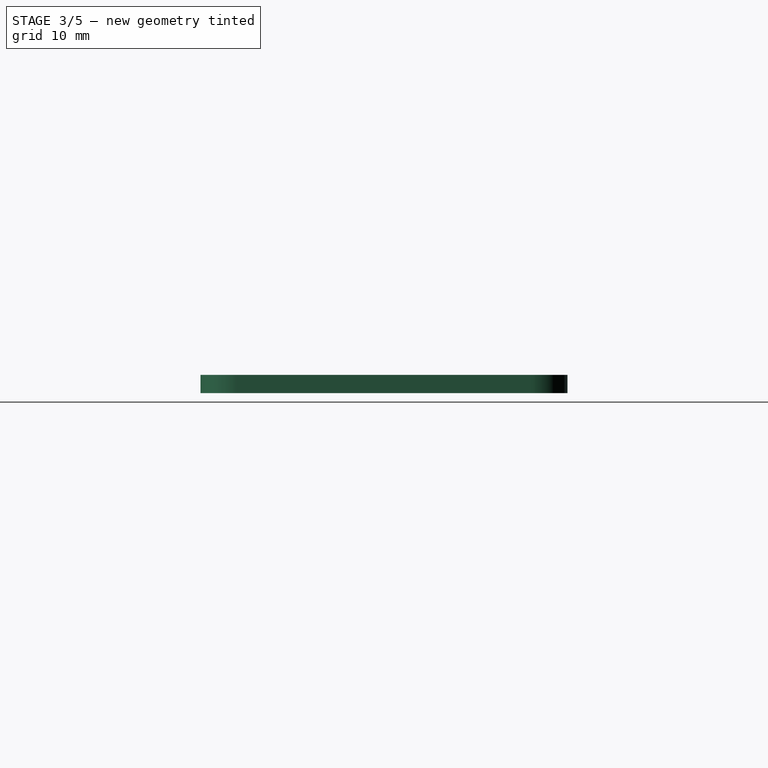
[diagram: stage 3 of 5 — right view after this stage's code; geometry added in this stage tinted green]
FEATURE [PartDesign::Mirrored] Mirrored002
  MirrorPlane = -> Sketch010 [V_Axis]
FEATURE [PartDesign::Mirrored] Mirrored003
  MirrorPlane = -> Sketch010 [H_Axis]
FEATURE [PartDesign::MultiTransform] MultiTransform001
  Originals = -> [Pad004]
  Transformations = -> [Mirrored002,Mirrored003]
FEATURE [Sketcher::SketchObject] Sketch011  label="prichyceni krabicky kapsa"
  ExternalGeometry = -> [MultiTransform001]
  Placement = pos=(0,0,3.5) rot=(0,0,1;0rad)
  Support = -> MultiTransform001 [Face124]
  sketch-geometry (1):
    g0: Circle CenterX=-38.25 CenterY=-15 CenterZ=0 NormalX=0 NormalY=0 NormalZ=1 Radius=2.75
  constraints (2):
    c: Coincident(g0,g-3)
    c: Radius(g0) = 2.75
FEATURE [PartDesign::Pocket] Pocket006
  Length = 1.2
  Sketch = -> Sketch011
  Type = 0
FEATURE [PartDesign::Mirrored] Mirrored004
  MirrorPlane = -> Sketch011 [V_Axis]
FEATURE [PartDesign::Mirrored] Mirrored005
  MirrorPlane = -> Sketch011 [H_Axis]
FEATURE [PartDesign::MultiTransform] MultiTransform002
  Originals = -> [Pocket006]
  Transformations = -> [Mirrored004,Mirrored005]
FEATURE [PartDesign::Fillet] Fillet
  Base = -> MultiTransform002 [Edge262,Edge258]
  Radius = 0.9
FEATURE [PartDesign::Fillet] Fillet001
  Base = -> Fillet [Edge165,Edge162]
  Radius = 1.2
FEATURE [Sketcher::SketchObject] Sketch012  label="vicko zakladna"
  ExternalGeometry = -> [Fillet001]
  Placement = pos=(0,0,33) rot=(0,0,1;0rad)
  sketch-geometry (8):
    g0: LineSegment StartX=-28.95 StartY=27 StartZ=0 EndX=28.95 EndY=27 EndZ=0
    g1: LineSegment StartX=34.25 StartY=21.7 StartZ=0 EndX=34.25 EndY=-21.7 EndZ=0
    g2: LineSegment StartX=28.95 StartY=-27 StartZ=0 EndX=-28.95 EndY=-27 EndZ=0
    g3: LineSegment StartX=-34.25 StartY=21.7 StartZ=0 EndX=-34.25 EndY=-21.7 EndZ=0
    g4: ArcOfCircle CenterX=-28.95 CenterY=21.7 CenterZ=0 NormalX=0 NormalY=0 NormalZ=1 Radius=5.3 StartAngle=1.5708 EndAngle=3.14159
    g5: ArcOfCircle CenterX=28.95 CenterY=21.7 CenterZ=0 NormalX=0 NormalY=0 NormalZ=1 Radius=5.3 StartAngle=0 EndAngle=1.5708
    g6: ArcOfCircle CenterX=28.95 CenterY=-21.7 CenterZ=0 NormalX=0 NormalY=0 NormalZ=1 Radius=5.3 StartAngle=4.71239 EndAngle=6.28319
    g7: ArcOfCircle CenterX=-28.95 CenterY=-21.7 CenterZ=0 NormalX=0 NormalY=0 NormalZ=1 Radius=5.3 StartAngle=3.14159 EndAngle=4.71239
  constraints (20):
    c: Coincident(g0,g-7)
    c: Coincident(g0,g-8)
    c: Coincident(g1,g-9)
    c: Coincident(g1,g-10)
    c: Coincident(g2,g-10)
    c: Coincident(g2,g-4)
    c: Coincident(g3,g-6)
    c: Coincident(g3,g-5)
    c: Coincident(g4,g-6)
    c: Coincident(g4,g0)
    c: Coincident(g4,g3)
    c: Coincident(g5,g-8)
    c: Coincident(g5,g0)
    c: Coincident(g5,g1)
    c: Coincident(g6,g-10)
    c: Coincident(g6,g1)
    c: Coincident(g6,g2)
    c: Coincident(g7,g-4)
    c: Coincident(g7,g2)
    c: Coincident(g7,g3)
FEATURE [PartDesign::Pad] Pad005
  Length = 2.7
  Length2 = 100
  Placement = pos=(0,0,33) rot=(0,0,1;0rad)
  Sketch = -> Sketch012
  Type = 0
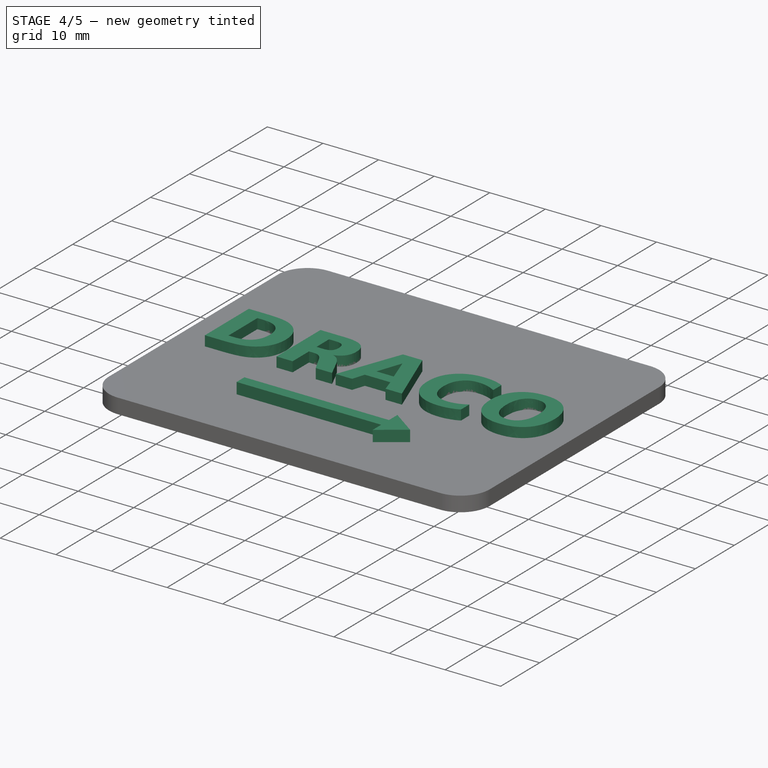
[diagram: stage 4 of 5 — iso view after this stage's code; geometry added in this stage tinted green]
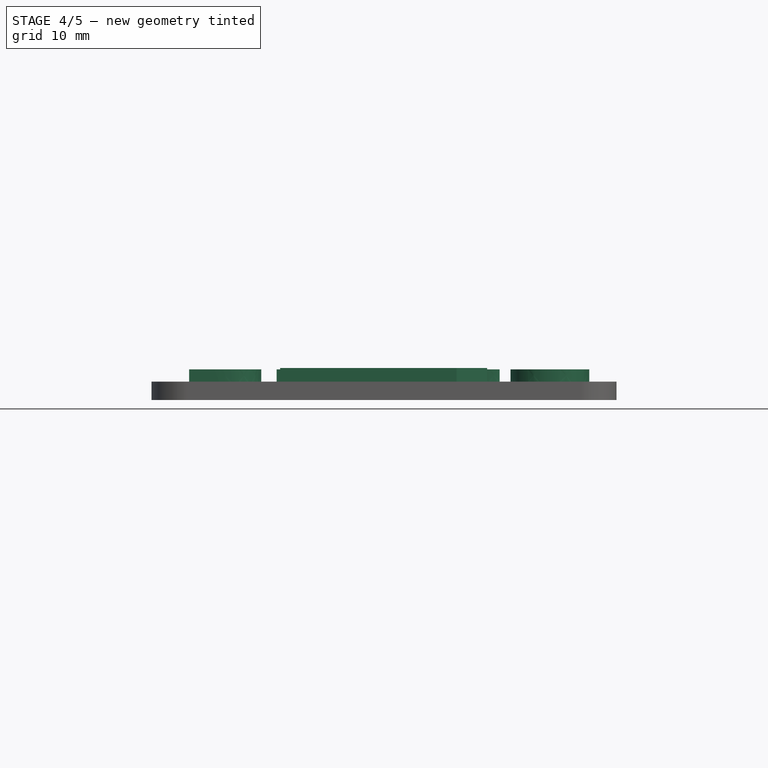
[diagram: stage 4 of 5 — front view after this stage's code; geometry added in this stage tinted green]
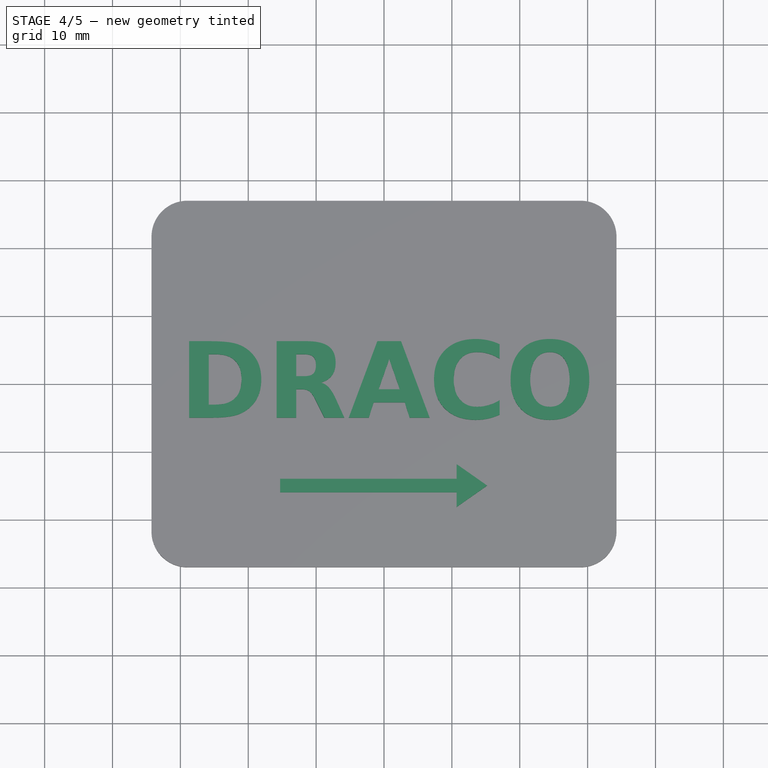
[diagram: stage 4 of 5 — top view after this stage's code; geometry added in this stage tinted green]
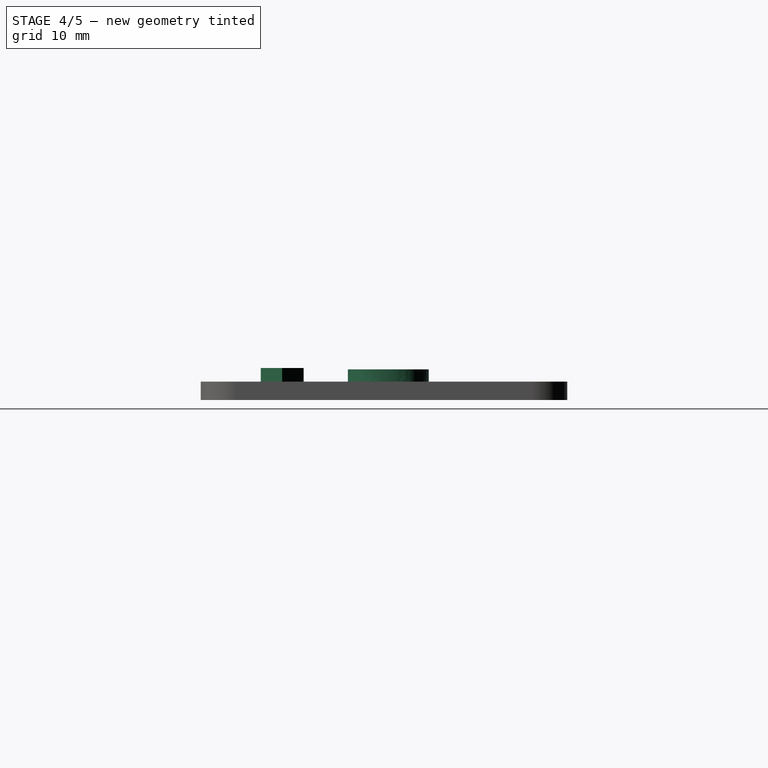
[diagram: stage 4 of 5 — right view after this stage's code; geometry added in this stage tinted green]
FEATURE [Part::Part2DObjectPython] ShapeString  # Draft 2D object (typed FeaturePython)
  FontFile = <path>
  Placement = pos=(-30,-5,35.5) rot=(0,0,1;0rad)
  Size = 12
  String = DRACO
  Support = -> Pad005
  Tracking = 0
FEATURE [Part::Extrusion] Extrude
  Base = -> ShapeString
  Dir = (0,0,2)
  Solid = true
FEATURE [Sketcher::SketchObject] Sketch013  label="vicko sipka"
  Placement = pos=(0,0,35.7) rot=(0,0,1;0rad)
  Support = -> Pad005 [Face10]
  sketch-geometry (8):
    g0: LineSegment StartX=-15.3019 StartY=-14 StartZ=0 EndX=10.6981 EndY=-14 EndZ=0
    g1: LineSegment StartX=10.6981 StartY=-14 StartZ=0 EndX=10.6981 EndY=-11.8414 EndZ=0
    g2: LineSegment StartX=10.6981 StartY=-11.8414 StartZ=0 EndX=15.1981 EndY=-15 EndZ=0
    g3: LineSegment StartX=15.1981 StartY=-15 StartZ=0 EndX=10.6981 EndY=-18.1587 EndZ=0
    g4: LineSegment StartX=10.6981 StartY=-18.1587 StartZ=0 EndX=10.6981 EndY=-16 EndZ=0
    g5: LineSegment StartX=10.6981 StartY=-16 StartZ=0 EndX=-15.3019 EndY=-16 EndZ=0
    g6: LineSegment StartX=-15.3019 StartY=-16 StartZ=0 EndX=-15.3019 EndY=-14 EndZ=0
    g7: LineSegment [constr] StartX=-15.3019 StartY=-15 StartZ=0 EndX=15.1981 EndY=-15 EndZ=0
  constraints (23):
    c: Horizontal(g0)
    c: Coincident(g0,g1)
    c: Vertical(g1)
    c: Coincident(g1,g2)
    c: Coincident(g2,g3)
    c: Coincident(g3,g4)
    c: Vertical(g4)
    c: Coincident(g4,g5)
    c: Horizontal(g5)
    c: Coincident(g5,g6)
    c: Coincident(g6,g0)
    c: Vertical(g6)
    c: DistanceY(g0,g5) = -2
    c: Coincident(g7,g2)
    c: Symmetric(g5,g0,g7)
    c: Symmetric(g4,g0,g7)
    c: Symmetric(g3,g1,g7)
    c: DistanceY(g1,g3) = -6.3173
    c: DistanceX(g2,g0) = -4.5
    c: PointOnObject(g7,g6)
    c: DistanceX(g0,g1) = 26
    c: DistanceX(g5) = -15.3019
    c: DistanceY(g5) = -16
FEATURE [PartDesign::Pad] Pad006
  Length = 2
  Length2 = 100
  Placement = pos=(0,0,33) rot=(0,0,1;0rad)
  Sketch = -> Sketch013
  Type = 0
FEATURE [Part::MultiFuse] Fusion
  Shapes = -> [Extrude,Pad006]
FEATURE [Sketcher::SketchObject] Sketch014  label="montazni otvor vicka"
  ExternalGeometry = -> [Fusion]
  Placement = pos=(0,0,35.7) rot=(0,0,1;0rad)
  Support = -> Fusion [Face5]
  sketch-geometry (1):
    g0: Circle CenterX=0 CenterY=-21 CenterZ=0 NormalX=0 NormalY=0 NormalZ=1 Radius=0.001
  constraints (3):
    c: PointOnObject(g0,g-2)
    c: Radius(g0) = 0.001
    c: Distance(g0,g-3) = 6
FEATURE [PartDesign::Pocket] Pocket007
  Length = 5
  Sketch = -> Sketch014
  Type = 0
FEATURE [PartDesign::Mirrored] Mirrored006
  MirrorPlane = -> Sketch014 [H_Axis]
  Originals = -> [Pocket007]
FEATURE [Sketcher::SketchObject] Sketch020  label="slot pro uchyceni ke krabicce"
  Placement = pos=(0,0,33) rot=(1,0,0;3.14159rad)
  Support = -> Mirrored006 [Face4]
  sketch-geometry (12):
    g0: LineSegment [constr] StartX=-26 StartY=-24.5 StartZ=0 EndX=-14 EndY=-24.5 EndZ=0
    g1: LineSegment [constr] StartX=-14 StartY=-24.5 StartZ=0 EndX=-14 EndY=-26 EndZ=0
    g2: LineSegment [constr] StartX=-14 StartY=-26 StartZ=0 EndX=-26 EndY=-26 EndZ=0
    g3: LineSegment [constr] StartX=-26 StartY=-26 StartZ=0 EndX=-26 EndY=-24.5 EndZ=0
    g4: LineSegment StartX=-26.1 StartY=-24.4 StartZ=0 EndX=-13.9 EndY=-24.4 EndZ=0
    g5: LineSegment StartX=-13.9 StartY=-24.4 StartZ=0 EndX=-13.9 EndY=-26.1 EndZ=0
    g6: LineSegment StartX=-13.9 StartY=-26.1 StartZ=0 EndX=-26.1 EndY=-26.1 EndZ=0
    g7: LineSegment StartX=-26.1 StartY=-26.1 StartZ=0 EndX=-26.1 EndY=-24.4 EndZ=0
    g8: LineSegment [constr] StartX=-14 StartY=-26 StartZ=0 EndX=-14 EndY=-26.1 EndZ=0
    g9: LineSegment [constr] StartX=-14 StartY=-26 StartZ=0 EndX=-13.9 EndY=-26 EndZ=0
    g10: LineSegment [constr] StartX=-26 StartY=-24.5 StartZ=0 EndX=-26 EndY=-24.4 EndZ=0
    g11: LineSegment [constr] StartX=-26 StartY=-24.5 StartZ=0 EndX=-26.1 EndY=-24.5 EndZ=0
  constraints (36):
    c: Coincident(g0,g1)
    c: Coincident(g1,g2)
    c: Coincident(g2,g3)
    c: Coincident(g3,g0)
    c: Horizontal(g0)
    c: Horizontal(g2)
    c: Vertical(g1)
    c: Vertical(g3)
    c: DistanceY(g0,g1) = -1.5
    c: DistanceX(g2,g1) = 12
    c: DistanceY(g-1,g0) = -24.5
    c: DistanceX(g-2,g0) = -26
    c: Coincident(g4,g5)
    c: Coincident(g5,g6)
    c: Coincident(g6,g7)
    c: Coincident(g7,g4)
    c: Horizontal(g4)
    c: Horizontal(g6)
    c: Vertical(g5)
    c: Vertical(g7)
    c: Coincident(g8,g1)
    c: PointOnObject(g8,g6)
    c: Vertical(g8)
    c: Coincident(g9,g1)
    c: PointOnObject(g9,g5)
    c: Horizontal(g9)
    c: Coincident(g10,g0)
    c: PointOnObject(g10,g4)
    c: Vertical(g10)
    c: Coincident(g11,g0)
    c: PointOnObject(g11,g7)
    c: Horizontal(g11)
    c: Equal(g9,g8)
    c: Equal(g8,g11)
    c: Equal(g11,g10)
    c: DistanceY(g10,g0) = -0.1
FEATURE [PartDesign::Pocket] Pocket011
  Length = 1.8
  Sketch = -> Sketch020
  Type = 0
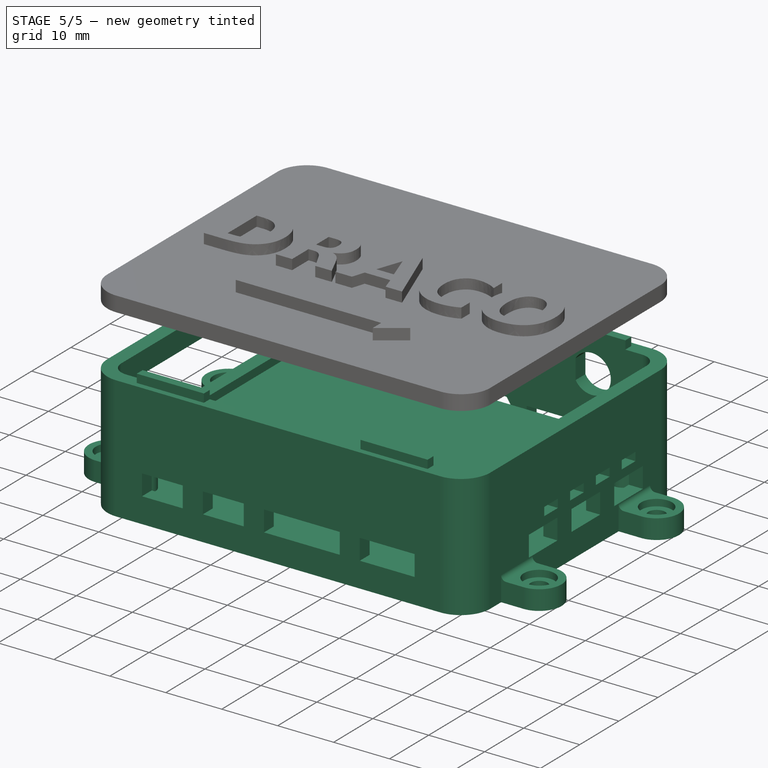
[diagram: stage 5 of 5 — iso view after this stage's code; geometry added in this stage tinted green]
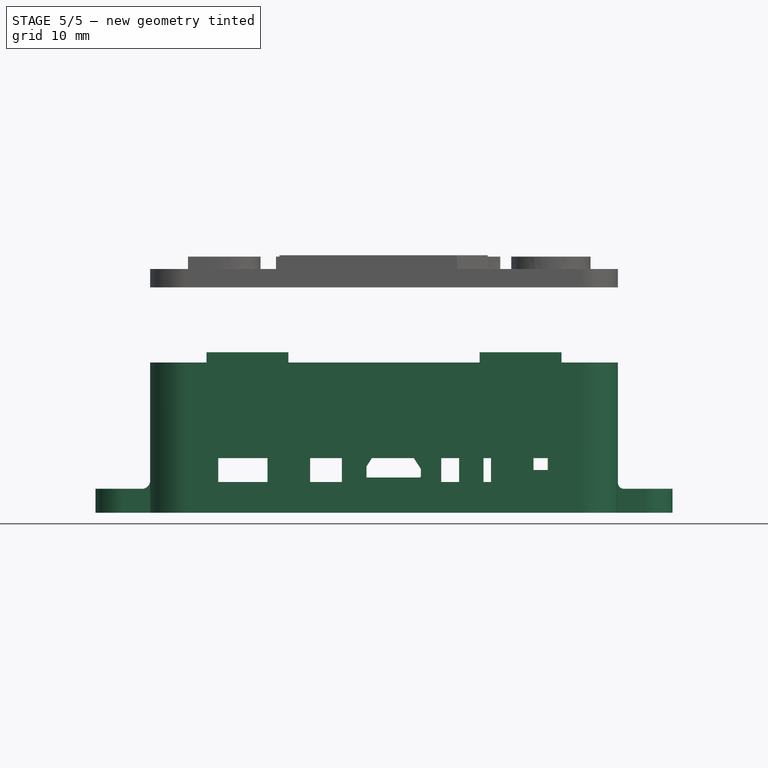
[diagram: stage 5 of 5 — front view after this stage's code; geometry added in this stage tinted green]
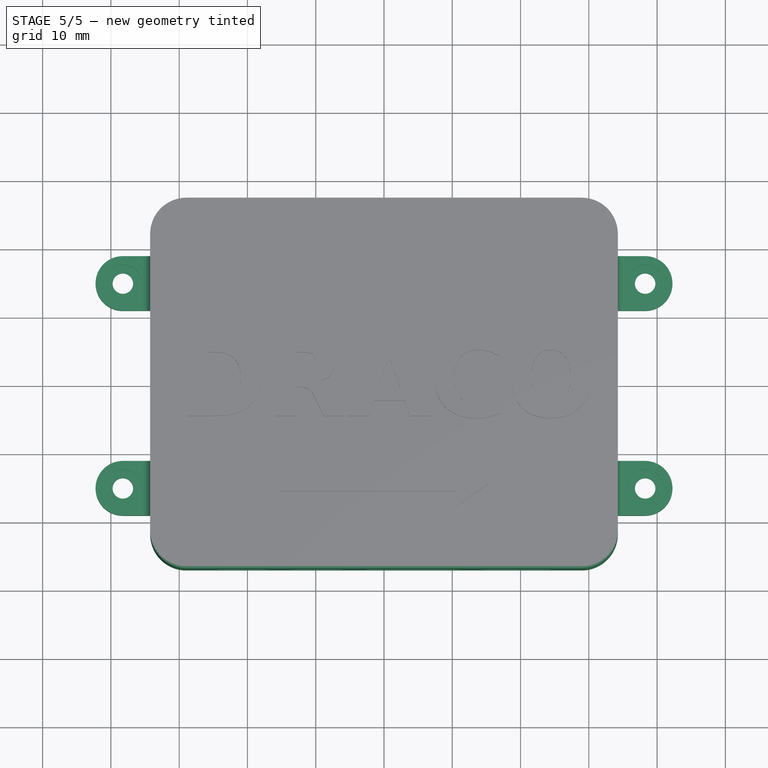
[diagram: stage 5 of 5 — top view after this stage's code; geometry added in this stage tinted green]
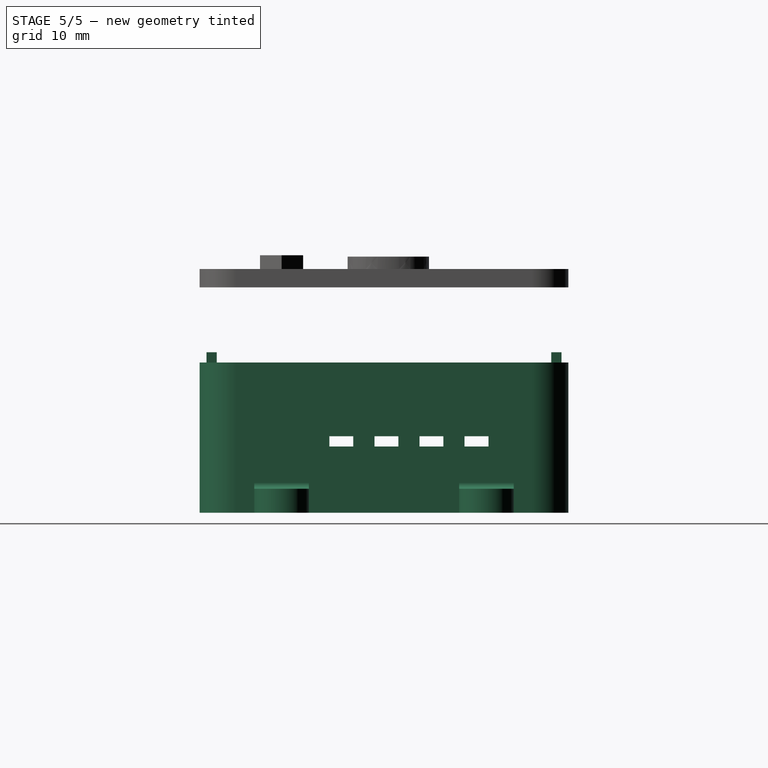
[diagram: stage 5 of 5 — right view after this stage's code; geometry added in this stage tinted green]
FEATURE [Sketcher::SketchObject] Sketch003  label="PCB"
  ExternalGeometry = -> [MultiTransform]
  Placement = pos=(0,0,8) rot=(0,0,1;0rad)
  sketch-geometry (4):
    g0: LineSegment StartX=-28.1 StartY=20.85 StartZ=0 EndX=31.25 EndY=20.85 EndZ=0
    g1: LineSegment StartX=31.25 StartY=20.85 StartZ=0 EndX=31.25 EndY=-23.2969 EndZ=0
    g2: LineSegment StartX=31.25 StartY=-23.2969 StartZ=0 EndX=-28.1 EndY=-23.2969 EndZ=0
    g3: LineSegment StartX=-28.1 StartY=-23.2969 StartZ=0 EndX=-28.1 EndY=20.85 EndZ=0
FEATURE [PartDesign::Pad] Pad003  label="pcbpad"
  Length = 1.7
  Length2 = 100
  Placement = pos=(0,0,8) rot=(0,0,1;0rad)
  Sketch = -> Sketch003
  Type = 0
FEATURE [Sketcher::SketchObject] Sketch018  label="microusb drazka"
  ExternalGeometry = -> [Pocket004]
  Placement = pos=(0,24.5,0) rot=(1,0,0;1.5708rad)
  Support = -> Fillet001 [Face32]
  sketch-geometry (4):
    g0: LineSegment StartX=-3.35 StartY=22 StartZ=0 EndX=6.05 EndY=22 EndZ=0
    g1: LineSegment StartX=6.05 StartY=22 StartZ=0 EndX=6.05 EndY=4.6 EndZ=0
    g2: LineSegment StartX=6.05 StartY=4.6 StartZ=0 EndX=-3.35 EndY=4.6 EndZ=0
    g3: LineSegment StartX=-3.35 StartY=4.6 StartZ=0 EndX=-3.35 EndY=22 EndZ=0
  constraints (12):
    c: Coincident(g0,g1)
    c: Coincident(g1,g2)
    c: Coincident(g2,g3)
    c: Coincident(g3,g0)
    c: Horizontal(g0)
    c: Horizontal(g2)
    c: Vertical(g1)
    c: Vertical(g3)
    c: PointOnObject(g0,g-3)
    c: DistanceY(g2,g0) = 17.4
    c: DistanceX(g0,g0) = 9.4
    c: DistanceX(g-3,g0) = 25.6
FEATURE [PartDesign::Pocket] Pocket010
  Length = 0.8
  Sketch = -> Sketch018
  Type = 0
FEATURE [Sketcher::SketchObject] Sketch019  label="Vystupek pro uchyceni vicka"
  ExternalGeometry = -> [Pocket010]
  Placement = pos=(0,0,22) rot=(0,0,1;0rad)
  Support = -> Pocket010 [Face10]
  sketch-geometry (4):
    g0: LineSegment StartX=-26 StartY=-24.5 StartZ=0 EndX=-14 EndY=-24.5 EndZ=0
    g1: LineSegment StartX=-14 StartY=-24.5 StartZ=0 EndX=-14 EndY=-26 EndZ=0
    g2: LineSegment StartX=-14 StartY=-26 StartZ=0 EndX=-26 EndY=-26 EndZ=0
    g3: LineSegment StartX=-26 StartY=-26 StartZ=0 EndX=-26 EndY=-24.5 EndZ=0
  constraints (12):
    c: Coincident(g0,g1)
    c: Coincident(g1,g2)
    c: Coincident(g2,g3)
    c: Coincident(g3,g0)
    c: Horizontal(g0)
    c: Horizontal(g2)
    c: Vertical(g1)
    c: Vertical(g3)
    c: PointOnObject(g0,g-3)
    c: DistanceX(g2,g1) = 12
    c: DistanceY(g0,g2) = -1.5
    c: DistanceX(g-1,g0) = -26
FEATURE [PartDesign::Pad] Pad007
  Length = 1.5
  Length2 = 100
  Sketch = -> Sketch019
  Type = 0
FEATURE [PartDesign::Mirrored] Mirrored007
  MirrorPlane = -> Sketch019 [V_Axis]
FEATURE [PartDesign::Mirrored] Mirrored008
  MirrorPlane = -> Sketch019 [H_Axis]
FEATURE [PartDesign::MultiTransform] MultiTransform003  label="KRABICKA MultiTransform003"
  Originals = -> [Pad007]
  Transformations = -> [Mirrored007,Mirrored008]
FEATURE [PartDesign::Mirrored] Mirrored009
  MirrorPlane = -> Sketch020 [V_Axis]
FEATURE [PartDesign::Mirrored] Mirrored010
  MirrorPlane = -> Sketch020 [H_Axis]
FEATURE [PartDesign::MultiTransform] MultiTransform004
  Originals = -> [Pocket011]
  Transformations = -> [Mirrored009,Mirrored010]
FEATURE [Sketcher::SketchObject] Sketch021  label="dloubatko vicka"
  ExternalGeometry = -> [MultiTransform004]
  Placement = pos=(-34.25,0,0) rot=(0.57735,-0.57735,-0.57735;2.0944rad)
  Support = -> MultiTransform004 [Face3]
  sketch-geometry (4):
    g0: LineSegment StartX=-2 StartY=34.2 StartZ=0 EndX=2 EndY=34.2 EndZ=0
    g1: LineSegment StartX=2 StartY=34.2 StartZ=0 EndX=2 EndY=33 EndZ=0
    g2: LineSegment StartX=2 StartY=33 StartZ=0 EndX=-2 EndY=33 EndZ=0
    g3: LineSegment StartX=-2 StartY=33 StartZ=0 EndX=-2 EndY=34.2 EndZ=0
  constraints (12):
    c: Coincident(g0,g1)
    c: Coincident(g1,g2)
    c: Coincident(g2,g3)
    c: Coincident(g3,g0)
    c: Horizontal(g0)
    c: Horizontal(g2)
    c: Vertical(g1)
    c: Vertical(g3)
    c: PointOnObject(g1,g-3)
    c: Symmetric(g2,g1,g-2)
    c: DistanceY(g0,g1) = -1.2
    c: DistanceX(g2,g1) = 4
FEATURE [PartDesign::Pocket] Pocket012  label="VICKO Pocket012"
  Length = 2
  Sketch = -> Sketch021
  Type = 0
note: 1 file-system path scrubbed to <path> (originals preserved in the JSON sidecar)
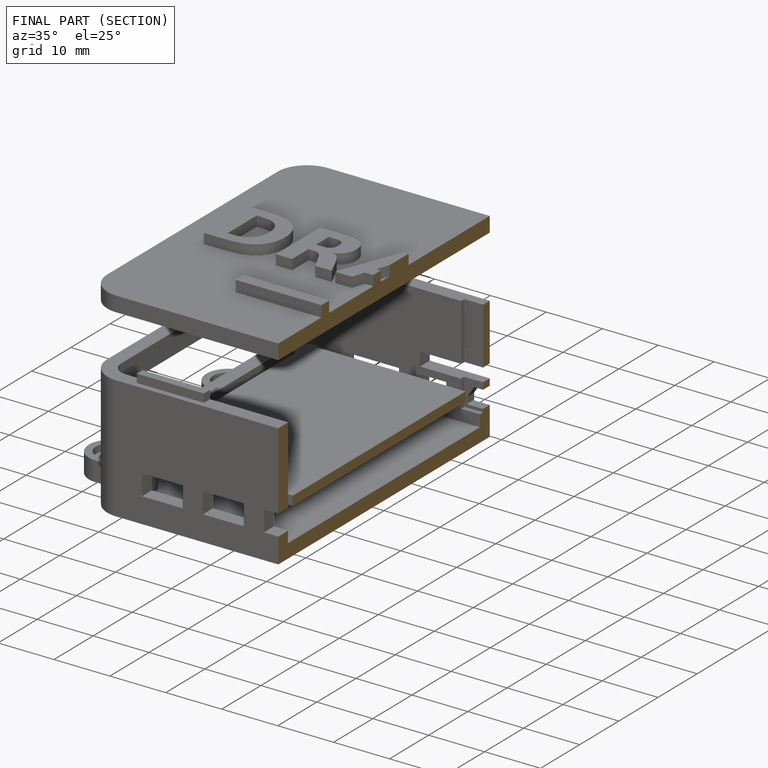
[diagram: finished part — half-section view (interior)]
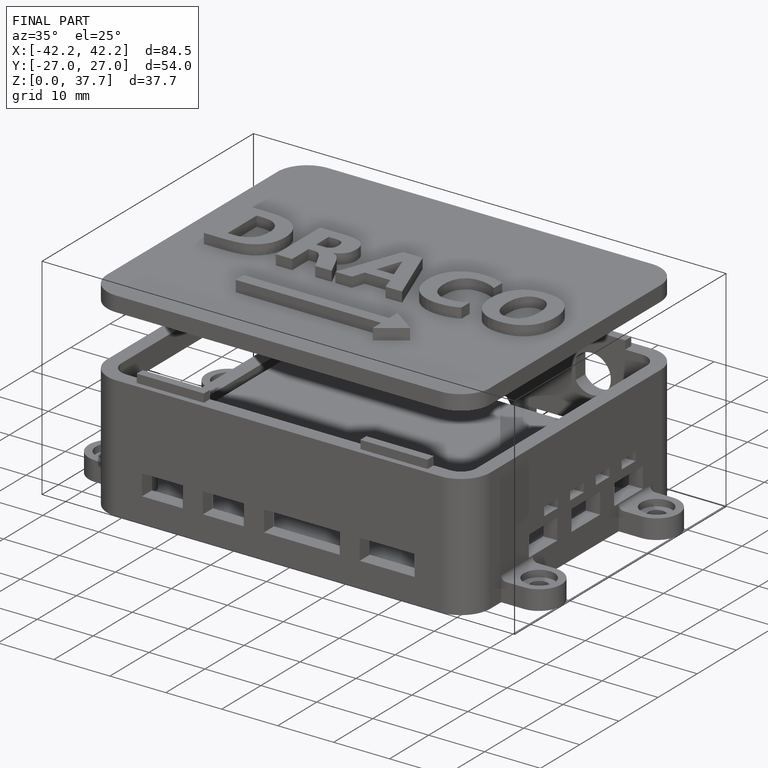
[diagram: finished part — iso view with bounding-box wireframe]
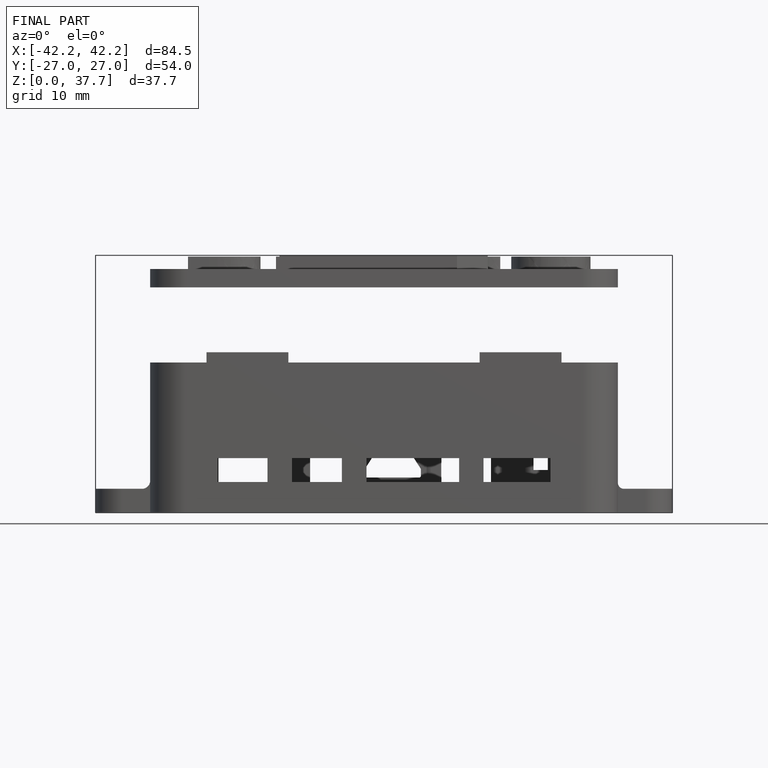
[diagram: finished part — front view with bounding-box wireframe]
